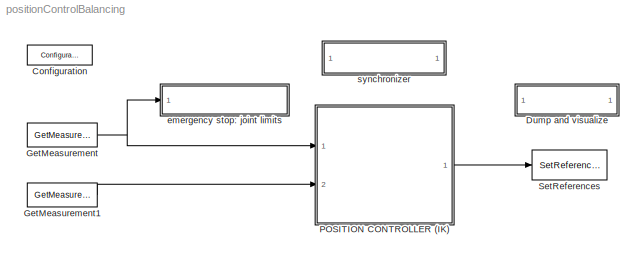
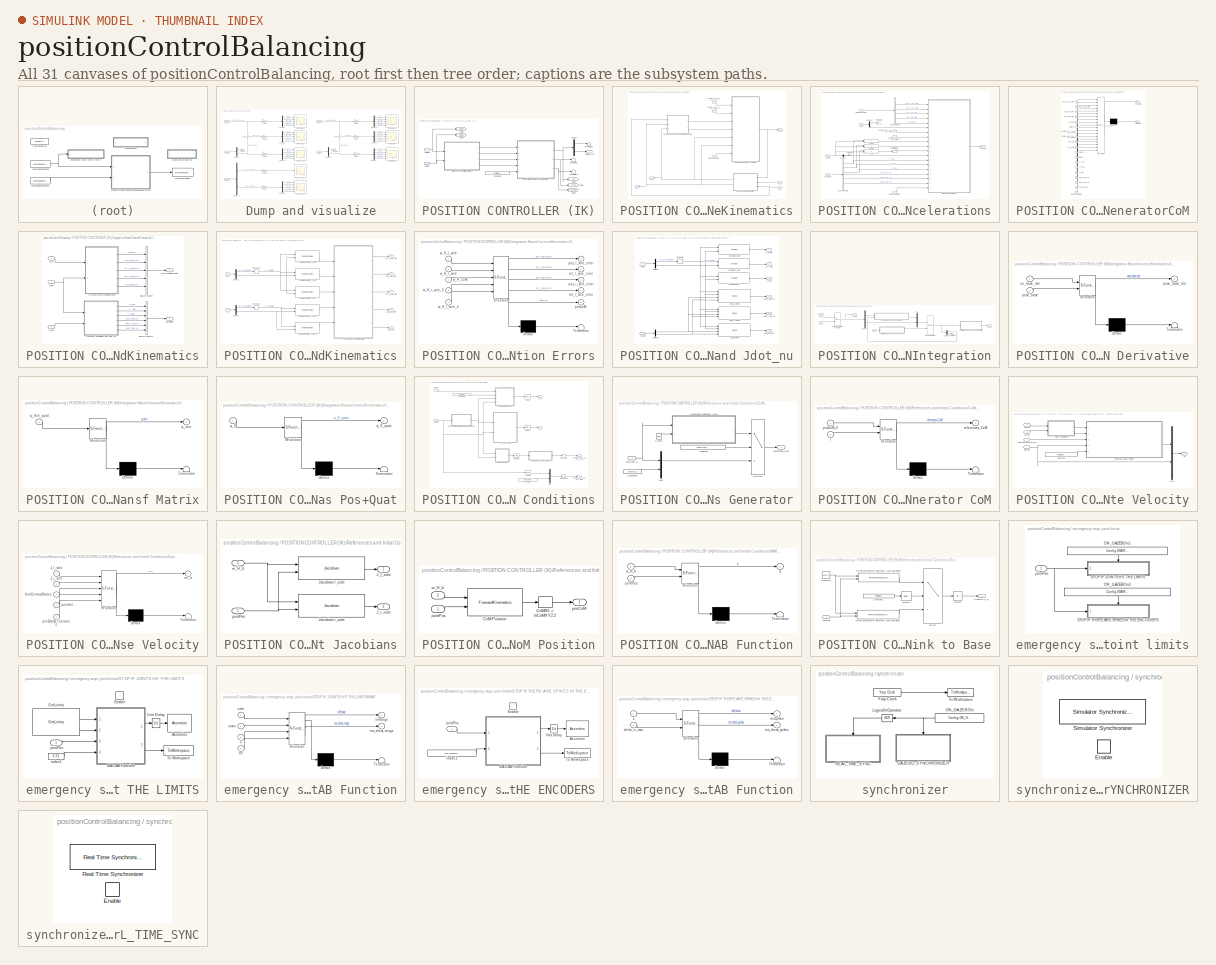
[diagram: thumbnail index - all 31 canvases of the model, root first then tree order]
MODEL positionControlBalancing
KIND model
CONFIG InitFcn = %% initialize the simulation\ncd(fileparts(which(bdroot)));\ninitPositionControlBalancing;\n\n%% Try to edit the GUI (the user may have already closed it)\ntry\n\n    %% Update Start Button\n    set(sl_synch_handles.startButton,'Backgroundcolor',[0.0,1.0,0.0]);\n    set(sl_synch_handles.startButton,'Enable','on');\n\nend
CONFIG PostLoadFcn = %% Try to open the static GUI\ntry\n\n    staticGUI = simulinkStaticGUI;\n\nend
CONFIG StartFcn = %% Try to edit the GUI (the user may have already closed it)\ntry\n\n    %% Update Start Button\n    set(sl_synch_handles.startButton,'Backgroundcolor',[0.8,0.8,0.8]);\n    set(sl_synch_handles.startButton,'Enable','off');\n\n    %% Update Compile Button\n    set(sl_synch_handles.compileButton,'Backgroundcolor',[0.8,0.8,0.8]);\n    set(sl_synch_handles.compileButton,'Enable','off');\n\n    %% Upda...<+146ch>
CONFIG StopFcn = %% stop the simulation\ncd(fileparts(which(bdroot)));\nstopPositionControlBalancing;\n\n%% Try to edit the GUI (the user may have already closed it)\ntry\n\n    %% Update Start Button\n    if get(sl_synch_handles.checkbox_recompile, 'Value')  \n        set(sl_synch_handles.startButton,'Backgroundcolor',[0.0,1.0,0.0]);\n        set(sl_synch_handles.startButton,'Enable','on');\n    end\n\n    %% Upd...<+310ch>
BLOCK [Reference] Configuration  REF=WBToolboxLibrary/Utilities/Configuration
  ConfigObject = 'WBTConfigRobot'
  ConfigSource = Workspace
  ControlBoardsNames = {'left_arm','right_arm','torso'}
  ControlledJoints = {'l_elbow','l_shoulder_pitch','torso_roll'}
  GravityVector = [0,0,-9.81]
  LocalName = 'WBT'
  Ports = []
  RTWMemSecDataConstants = Inherit from model
  RTWMemSecDataInternal = Inherit from model
  RTWMemSecDataParameters = Inherit from model
  RTWMemSecFuncExecute = Inherit from model
  RTWMemSecFuncInitTerm = Inherit from model
  RobotName = 'icubSim'
  SID = 4537
  SourceBlock = WBToolboxLibrary/Utilities/Configuration
  SourceProductName = WholeBodyToolbox
  UrdfFile = 'model.urdf'
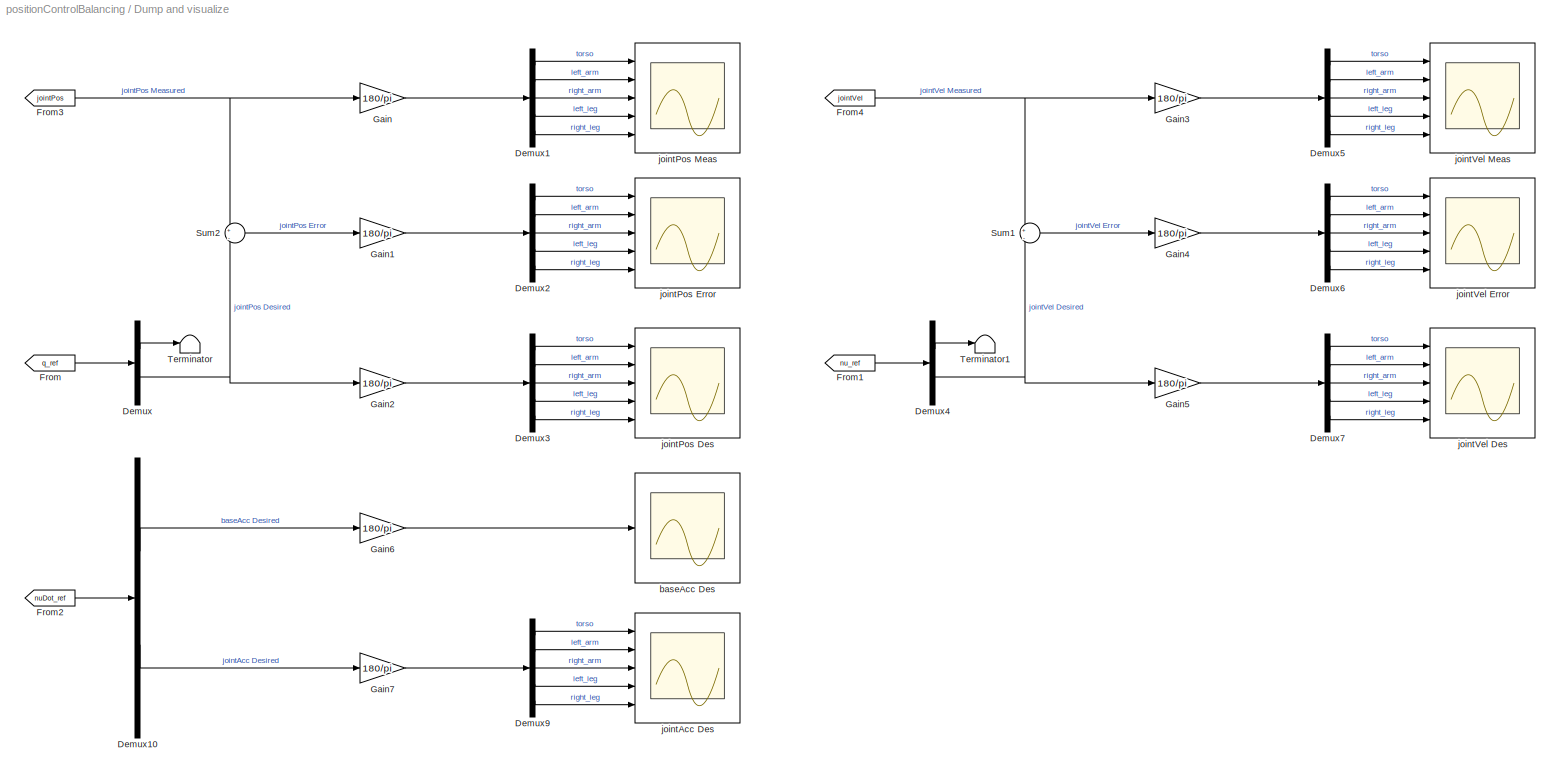
BLOCK [SubSystem] Dump and visualize
  Ports = []
  RequestExecContextInheritance = off
  SID = 2275
BLOCK [Demux] Dump and visualize/Demux
  Outputs = [16;ROBOT_DOF]
  Ports = [1, 2]
  SID = 5128
BLOCK [Demux] Dump and visualize/Demux1
  Outputs = Config.numOfJointsForEachControlboard
  Ports = [1, 5]
  SID = 5118
BLOCK [Demux] Dump and visualize/Demux10
  Outputs = [6;ROBOT_DOF]
  Ports = [1, 2]
  SID = 5148
BLOCK [Demux] Dump and visualize/Demux2
  Outputs = Config.numOfJointsForEachControlboard
  Ports = [1, 5]
  SID = 5119
BLOCK [Demux] Dump and visualize/Demux3
  Outputs = Config.numOfJointsForEachControlboard
  Ports = [1, 5]
  SID = 5120
BLOCK [Demux] Dump and visualize/Demux4
  Outputs = [6;ROBOT_DOF]
  Ports = [1, 2]
  SID = 5130
BLOCK [Demux] Dump and visualize/Demux5
  Outputs = Config.numOfJointsForEachControlboard
  Ports = [1, 5]
  SID = 5131
BLOCK [Demux] Dump and visualize/Demux6
  Outputs = Config.numOfJointsForEachControlboard
  Ports = [1, 5]
  SID = 5132
BLOCK [Demux] Dump and visualize/Demux7
  Outputs = Config.numOfJointsForEachControlboard
  Ports = [1, 5]
  SID = 5133
BLOCK [Demux] Dump and visualize/Demux9
  Outputs = Config.numOfJointsForEachControlboard
  Ports = [1, 5]
  SID = 5145
BLOCK [From] Dump and visualize/From
  GotoTag = q_ref
  SID = 5113
  TagVisibility = global
BLOCK [From] Dump and visualize/From1
  GotoTag = nu_ref
  SID = 5114
  TagVisibility = global
BLOCK [From] Dump and visualize/From2
  GotoTag = nuDot_ref
  SID = 5115
  TagVisibility = global
BLOCK [From] Dump and visualize/From3
  GotoTag = jointPos
  SID = 5116
  TagVisibility = global
BLOCK [From] Dump and visualize/From4
  GotoTag = jointVel
  SID = 5117
  TagVisibility = global
BLOCK [Gain] Dump and visualize/Gain
  Gain = 180/pi
  SID = 5121
BLOCK [Gain] Dump and visualize/Gain1
  Gain = 180/pi
  SID = 5122
BLOCK [Gain] Dump and visualize/Gain2
  Gain = 180/pi
  SID = 5123
BLOCK [Gain] Dump and visualize/Gain3
  Gain = 180/pi
  SID = 5134
BLOCK [Gain] Dump and visualize/Gain4
  Gain = 180/pi
  SID = 5135
BLOCK [Gain] Dump and visualize/Gain5
  Gain = 180/pi
  SID = 5136
BLOCK [Gain] Dump and visualize/Gain6
  Gain = 180/pi
  SID = 5143
BLOCK [Gain] Dump and visualize/Gain7
  Gain = 180/pi
  SID = 5146
BLOCK [Sum] Dump and visualize/Sum1
  Inputs = +|-
  Ports = [2, 1]
  SID = 5137
BLOCK [Sum] Dump and visualize/Sum2
  Inputs = +|-
  Ports = [2, 1]
  SID = 5124
BLOCK [Terminator] Dump and visualize/Terminator
  SID = 5129
BLOCK [Terminator] Dump and visualize/Terminator1
  SID = 5138
BLOCK [Scope] Dump and visualize/baseAcc Des
  Floating = off
  NumInputPorts = 1
  Ports = [1]
  SID = 5144
  ScopeSpecificationString = Simulink.scopes.TimeScopeBlockCfg('CurrentConfiguration', extmgr.ConfigurationSet(extmgr.Configuration('Core','General UI',true,'FigureColor',[0.156862745098039 0.156862745098039 0.156862745098039]),extmgr.Configuration('Core','Source UI',true),extmgr.Configuration('Sources','WiredSimulink',true,'DataLogging',true,'DataLoggingVariableName','baseAcc_des_DATA','DataLoggingSaveFormat','StructureWithT...<+2255ch>
BLOCK [Scope] Dump and visualize/jointAcc Des
  Floating = off
  NumInputPorts = 5
  Ports = [5]
  SID = 5147
  ScopeSpecificationString = Simulink.scopes.TimeScopeBlockCfg('CurrentConfiguration', extmgr.ConfigurationSet(extmgr.Configuration('Core','General UI',true,'FigureColor',[0.156862745098039 0.156862745098039 0.156862745098039]),extmgr.Configuration('Core','Source UI',true),extmgr.Configuration('Sources','WiredSimulink',true,'DataLogging',true,'DataLoggingVariableName','jointAcc_des_DATA','DataLoggingSaveFormat','StructureWith...<+7580ch>
BLOCK [Scope] Dump and visualize/jointPos Des
  Floating = off
  NumInputPorts = 5
  Ports = [5]
  SID = 5125
  ScopeSpecificationString = Simulink.scopes.TimeScopeBlockCfg('CurrentConfiguration', extmgr.ConfigurationSet(extmgr.Configuration('Core','General UI',true,'FigureColor',[0.156862745098039 0.156862745098039 0.156862745098039]),extmgr.Configuration('Core','Source UI',true),extmgr.Configuration('Sources','WiredSimulink',true,'DataLogging',true,'DataLoggingVariableName','jointPos_Desired_DATA','DataLoggingSaveFormat','Structure...<+7578ch>
BLOCK [Scope] Dump and visualize/jointPos Error
  Floating = off
  NumInputPorts = 5
  Ports = [5]
  SID = 5126
  ScopeSpecificationString = Simulink.scopes.TimeScopeBlockCfg('CurrentConfiguration', extmgr.ConfigurationSet(extmgr.Configuration('Core','General UI',true,'FigureColor',[0.156862745098039 0.156862745098039 0.156862745098039]),extmgr.Configuration('Core','Source UI',true),extmgr.Configuration('Sources','WiredSimulink',true,'DataLogging',true,'DataLoggingVariableName','jointPos_Error_DATA','DataLoggingSaveFormat','StructureWi...<+7570ch>
BLOCK [Scope] Dump and visualize/jointPos Meas
  Floating = off
  NumInputPorts = 5
  Ports = [5]
  SID = 5127
  ScopeSpecificationString = Simulink.scopes.TimeScopeBlockCfg('CurrentConfiguration', extmgr.ConfigurationSet(extmgr.Configuration('Core','General UI',true,'FigureColor',[0.156862745098039 0.156862745098039 0.156862745098039]),extmgr.Configuration('Core','Source UI',true),extmgr.Configuration('Sources','WiredSimulink',true,'DataLogging',true,'DataLoggingVariableName','jointPos_DATA','DataLoggingSaveFormat','StructureWithTime...<+7568ch>
BLOCK [Scope] Dump and visualize/jointVel Des
  Floating = off
  NumInputPorts = 5
  Ports = [5]
  SID = 5139
  ScopeSpecificationString = Simulink.scopes.TimeScopeBlockCfg('CurrentConfiguration', extmgr.ConfigurationSet(extmgr.Configuration('Core','General UI',true,'FigureColor',[0.156862745098039 0.156862745098039 0.156862745098039]),extmgr.Configuration('Core','Source UI',true),extmgr.Configuration('Sources','WiredSimulink',true,'DataLogging',true,'DataLoggingVariableName','jointVel_Desired_DATA','DataLoggingSaveFormat','Structure...<+7572ch>
BLOCK [Scope] Dump and visualize/jointVel Error
  Floating = off
  NumInputPorts = 5
  Ports = [5]
  SID = 5140
  ScopeSpecificationString = Simulink.scopes.TimeScopeBlockCfg('CurrentConfiguration', extmgr.ConfigurationSet(extmgr.Configuration('Core','General UI',true,'FigureColor',[0.156862745098039 0.156862745098039 0.156862745098039]),extmgr.Configuration('Core','Source UI',true),extmgr.Configuration('Sources','WiredSimulink',true,'DataLogging',true,'DataLoggingVariableName','jointVel_Error_DATA','DataLoggingSaveFormat','StructureWi...<+7581ch>
BLOCK [Scope] Dump and visualize/jointVel Meas
  Floating = off
  NumInputPorts = 5
  Ports = [5]
  SID = 5141
  ScopeSpecificationString = Simulink.scopes.TimeScopeBlockCfg('CurrentConfiguration', extmgr.ConfigurationSet(extmgr.Configuration('Core','General UI',true,'FigureColor',[0.156862745098039 0.156862745098039 0.156862745098039]),extmgr.Configuration('Core','Source UI',true),extmgr.Configuration('Sources','WiredSimulink',true,'DataLogging',true,'DataLoggingVariableName','jointVel_DATA','DataLoggingSaveFormat','StructureWithTime...<+7575ch>
BLOCK [Reference] GetMeasurement  REF=WBToolboxLibrary/States/GetMeasurement
  Ports = [0, 1]
  RTWMemSecDataConstants = Inherit from model
  RTWMemSecDataInternal = Inherit from model
  RTWMemSecDataParameters = Inherit from model
  RTWMemSecFuncExecute = Inherit from model
  RTWMemSecFuncInitTerm = Inherit from model
  SID = 4538
  SourceBlock = WBToolboxLibrary/States/GetMeasurement
  SourceProductName = WholeBodyToolbox
  SourceType = GetMeasurement
  measuredType = Joints Position
BLOCK [Reference] GetMeasurement1  REF=WBToolboxLibrary/States/GetMeasurement
  Ports = [0, 1]
  RTWMemSecDataConstants = Inherit from model
  RTWMemSecDataInternal = Inherit from model
  RTWMemSecDataParameters = Inherit from model
  RTWMemSecFuncExecute = Inherit from model
  RTWMemSecFuncInitTerm = Inherit from model
  SID = 4887
  SourceBlock = WBToolboxLibrary/States/GetMeasurement
  SourceProductName = WholeBodyToolbox
  SourceType = GetMeasurement
  measuredType = Joints Velocity
BLOCK [SubSystem] POSITION CONTROLLER (IK)
  Ports = [2, 1]
  RequestExecContextInheritance = off
  SID = 5076
BLOCK [Constant] POSITION CONTROLLER (IK)/Constant1
  SID = 5089
  Value = Config.feetContactStatus
BLOCK [Demux] POSITION CONTROLLER (IK)/Demux
  Outputs = [16;ROBOT_DOF]
  Ports = [1, 2]
  SID = 5102
BLOCK [Goto] POSITION CONTROLLER (IK)/Goto
  GotoTag = jointPos
  SID = 5108
  TagVisibility = global
BLOCK [Goto] POSITION CONTROLLER (IK)/Goto1
  GotoTag = jointVel
  SID = 5109
  TagVisibility = global
BLOCK [Goto] POSITION CONTROLLER (IK)/Goto2
  GotoTag = q_ref
  SID = 5110
  TagVisibility = global
BLOCK [Goto] POSITION CONTROLLER (IK)/Goto3
  GotoTag = nu_ref
  SID = 5111
  TagVisibility = global
BLOCK [Goto] POSITION CONTROLLER (IK)/Goto4
  GotoTag = nuDot_ref
  SID = 5112
  TagVisibility = global
BLOCK [SubSystem] POSITION CONTROLLER (IK)/Integration Based InverseKinematics
  Ports = [5, 3]
  RequestExecContextInheritance = off
  SID = 4907
BLOCK [SubSystem] POSITION CONTROLLER (IK)/Integration Based InverseKinematics/Compute Desired State Accelerations
  Ports = [7, 1]
  RequestExecContextInheritance = off
  SID = 4914
BLOCK [BusSelector] POSITION CONTROLLER (IK)/Integration Based InverseKinematics/Compute Desired State Accelerations/Bus\nSelector
  OutputSignals = pos_l_sole_error,pos_r_sole_error,rot_r_sole_error,rot_l_sole_error,posCoM
  Ports = [1, 5]
  SID = 5104
BLOCK [BusSelector] POSITION CONTROLLER (IK)/Integration Based InverseKinematics/Compute Desired State Accelerations/Bus\nSelector1
  OutputSignals = J_l_sole,J_r_sole,J_CoM,JDot_l_sole_nu,JDot_r_sole_nu,JDot_CoM_nu
  Ports = [1, 6]
  SID = 5105
BLOCK [Selector] POSITION CONTROLLER (IK)/Integration Based InverseKinematics/Compute Desired State Accelerations/CoM6D -> \nCoMXYZ1
  IndexOptions = Index vector (dialog)
  Indices = [1 2 3]
  InputPortWidth = 6
  OutputSizes = 1
  Ports = [1, 1]
  SID = 4927
BLOCK [Demux] POSITION CONTROLLER (IK)/Integration Based InverseKinematics/Compute Desired State Accelerations/Demux1
  Outputs = [6,ROBOT_DOF]
  Ports = [1, 2]
  SID = 4928
BLOCK [Demux] POSITION CONTROLLER (IK)/Integration Based InverseKinematics/Compute Desired State Accelerations/Demux2
  Outputs = [16,ROBOT_DOF]
  Ports = [1, 2]
  SID = 4929
BLOCK [Inport] POSITION CONTROLLER (IK)/Integration Based InverseKinematics/Compute Desired State Accelerations/Jacobians
  Port = 3
  SID = 5095
BLOCK [Product] POSITION CONTROLLER (IK)/Integration Based InverseKinematics/Compute Desired State Accelerations/JcNu
  Multiplication = Matrix(*)
  Ports = [2, 1]
  SID = 4930
BLOCK [Product] POSITION CONTROLLER (IK)/Integration Based InverseKinematics/Compute Desired State Accelerations/JcNu1
  Multiplication = Matrix(*)
  Ports = [2, 1]
  SID = 4931
BLOCK [Product] POSITION CONTROLLER (IK)/Integration Based InverseKinematics/Compute Desired State Accelerations/JcNu2
  Multiplication = Matrix(*)
  Ports = [2, 1]
  SID = 4932
BLOCK [Terminator] POSITION CONTROLLER (IK)/Integration Based InverseKinematics/Compute Desired State Accelerations/Terminator
  SID = 4933
BLOCK [Terminator] POSITION CONTROLLER (IK)/Integration Based InverseKinematics/Compute Desired State Accelerations/Terminator1
  SID = 4934
BLOCK [Inport] POSITION CONTROLLER (IK)/Integration Based InverseKinematics/Compute Desired State Accelerations/desired_pos_vel_acc_CoM
  SID = 4915
BLOCK [Inport] POSITION CONTROLLER (IK)/Integration Based InverseKinematics/Compute Desired State Accelerations/desired_pos_vel_acc_joints
  Port = 2
  SID = 4916
BLOCK [Inport] POSITION CONTROLLER (IK)/Integration Based InverseKinematics/Compute Desired State Accelerations/feetContactStatus
  Port = 7
  SID = 5099
BLOCK [Inport] POSITION CONTROLLER (IK)/Integration Based InverseKinematics/Compute Desired State Accelerations/forwardKinematics
  Port = 4
  SID = 5096
BLOCK [Outport] POSITION CONTROLLER (IK)/Integration Based InverseKinematics/Compute Desired State Accelerations/nuDot_ikin
  SID = 5098
  VectorParamsAs1DForOutWhenUnconnected = off
BLOCK [Inport] POSITION CONTROLLER (IK)/Integration Based InverseKinematics/Compute Desired State Accelerations/nu_ikin
  Port = 5
  SID = 4925
BLOCK [Inport] POSITION CONTROLLER (IK)/Integration Based InverseKinematics/Compute Desired State Accelerations/q_ikin
  Port = 6
  SID = 4926
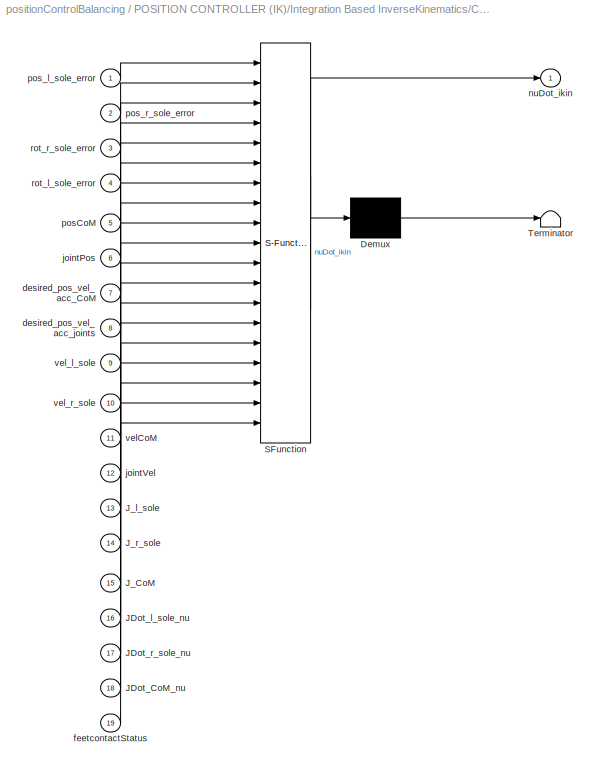
BLOCK [SubSystem] POSITION CONTROLLER (IK)/Integration Based InverseKinematics/Compute Desired State Accelerations/trajectoryGeneratorCoM
  ErrorFcn = Stateflow.Translate.translate
  PermitHierarchicalResolution = ExplicitOnly
  Ports = [19, 1]
  RequestExecContextInheritance = off
  SFBlockType = MATLAB Function
  SID = 4935
  TreatAsAtomicUnit = on
BLOCK [Demux] POSITION CONTROLLER (IK)/Integration Based InverseKinematics/Compute Desired State Accelerations/trajectoryGeneratorCoM/ Demux 
  Outputs = 1
  Ports = [1, 1]
  SID = 4935::1586
BLOCK [S-Function] POSITION CONTROLLER (IK)/Integration Based InverseKinematics/Compute Desired State Accelerations/trajectoryGeneratorCoM/ SFunction 
  EnableBusSupport = off
  FunctionName = sf_sfun
  Parameters = Config
  PortCounts = [19 2]
  Ports = [19, 2]
  SFcnIsStateOwnerBlock = off
  SFunctionDeploymentMode = off
  SID = 4935::1585
  Tag = Stateflow S-Function 29
BLOCK [Terminator] POSITION CONTROLLER (IK)/Integration Based InverseKinematics/Compute Desired State Accelerations/trajectoryGeneratorCoM/ Terminator 
  SID = 4935::1587
BLOCK [Inport] POSITION CONTROLLER (IK)/Integration Based InverseKinematics/Compute Desired State Accelerations/trajectoryGeneratorCoM/JDot_CoM_nu
  Port = 18
  SID = 4935::1542
BLOCK [Inport] POSITION CONTROLLER (IK)/Integration Based InverseKinematics/Compute Desired State Accelerations/trajectoryGeneratorCoM/JDot_l_sole_nu
  Port = 16
  SID = 4935::1540
BLOCK [Inport] POSITION CONTROLLER (IK)/Integration Based InverseKinematics/Compute Desired State Accelerations/trajectoryGeneratorCoM/JDot_r_sole_nu
  Port = 17
  SID = 4935::1541
BLOCK [Inport] POSITION CONTROLLER (IK)/Integration Based InverseKinematics/Compute Desired State Accelerations/trajectoryGeneratorCoM/J_CoM
  Port = 15
  SID = 4935::1545
BLOCK [Inport] POSITION CONTROLLER (IK)/Integration Based InverseKinematics/Compute Desired State Accelerations/trajectoryGeneratorCoM/J_l_sole
  Port = 13
  SID = 4935::1538
BLOCK [Inport] POSITION CONTROLLER (IK)/Integration Based InverseKinematics/Compute Desired State Accelerations/trajectoryGeneratorCoM/J_r_sole
  Port = 14
  SID = 4935::1539
BLOCK [Inport] POSITION CONTROLLER (IK)/Integration Based InverseKinematics/Compute Desired State Accelerations/trajectoryGeneratorCoM/desired_pos_vel_acc_CoM
  Port = 7
  SID = 4935::48
BLOCK [Inport] POSITION CONTROLLER (IK)/Integration Based InverseKinematics/Compute Desired State Accelerations/trajectoryGeneratorCoM/desired_pos_vel_acc_joints
  Port = 8
  SID = 4935::781
BLOCK [Inport] POSITION CONTROLLER (IK)/Integration Based InverseKinematics/Compute Desired State Accelerations/trajectoryGeneratorCoM/feetcontactStatus
  Port = 19
  SID = 4935::1543
BLOCK [Inport] POSITION CONTROLLER (IK)/Integration Based InverseKinematics/Compute Desired State Accelerations/trajectoryGeneratorCoM/jointPos
  Port = 6
  SID = 4935::777
BLOCK [Inport] POSITION CONTROLLER (IK)/Integration Based InverseKinematics/Compute Desired State Accelerations/trajectoryGeneratorCoM/jointVel
  Port = 12
  SID = 4935::778
BLOCK [Outport] POSITION CONTROLLER (IK)/Integration Based InverseKinematics/Compute Desired State Accelerations/trajectoryGeneratorCoM/nuDot_ikin
  SID = 4935::45
  VectorParamsAs1DForOutWhenUnconnected = off
BLOCK [Inport] POSITION CONTROLLER (IK)/Integration Based InverseKinematics/Compute Desired State Accelerations/trajectoryGeneratorCoM/posCoM
  Port = 5
  SID = 4935::775
BLOCK [Inport] POSITION CONTROLLER (IK)/Integration Based InverseKinematics/Compute Desired State Accelerations/trajectoryGeneratorCoM/pos_l_sole_error
  SID = 4935::780
BLOCK [Inport] POSITION CONTROLLER (IK)/Integration Based InverseKinematics/Compute Desired State Accelerations/trajectoryGeneratorCoM/pos_r_sole_error
  Port = 2
  SID = 4935::782
BLOCK [Inport] POSITION CONTROLLER (IK)/Integration Based InverseKinematics/Compute Desired State Accelerations/trajectoryGeneratorCoM/rot_l_sole_error
  Port = 4
  SID = 4935::1526
BLOCK [Inport] POSITION CONTROLLER (IK)/Integration Based InverseKinematics/Compute Desired State Accelerations/trajectoryGeneratorCoM/rot_r_sole_error
  Port = 3
  SID = 4935::1522
BLOCK [Inport] POSITION CONTROLLER (IK)/Integration Based InverseKinematics/Compute Desired State Accelerations/trajectoryGeneratorCoM/velCoM
  Port = 11
  SID = 4935::776
BLOCK [Inport] POSITION CONTROLLER (IK)/Integration Based InverseKinematics/Compute Desired State Accelerations/trajectoryGeneratorCoM/vel_l_sole
  Port = 9
  SID = 4935::1528
BLOCK [Inport] POSITION CONTROLLER (IK)/Integration Based InverseKinematics/Compute Desired State Accelerations/trajectoryGeneratorCoM/vel_r_sole
  Port = 10
  SID = 4935::783
BLOCK [SubSystem] POSITION CONTROLLER (IK)/Integration Based InverseKinematics/Compute Jacobians and ForwardKinematics
  Ports = [3, 2]
  RequestExecContextInheritance = off
  SID = 4939
BLOCK [BusCreator] POSITION CONTROLLER (IK)/Integration Based InverseKinematics/Compute Jacobians and ForwardKinematics/Bus\nCreator
  DisplayOption = bar
  InheritFromInputs = on
  Inputs = 5
  Ports = [5, 1]
  SID = 5093
BLOCK [BusCreator] POSITION CONTROLLER (IK)/Integration Based InverseKinematics/Compute Jacobians and ForwardKinematics/Bus\nCreator1
  DisplayOption = bar
  InheritFromInputs = on
  Inputs = 6
  Ports = [6, 1]
  SID = 5094
BLOCK [SubSystem] POSITION CONTROLLER (IK)/Integration Based InverseKinematics/Compute Jacobians and ForwardKinematics/Compute ForwardKinematics
  Ports = [2, 5]
  RequestExecContextInheritance = off
  SID = 4943
BLOCK [SubSystem] POSITION CONTROLLER (IK)/Integration Based InverseKinematics/Compute Jacobians and ForwardKinematics/Compute ForwardKinematics/Comput Position and Orientation Errors
  ErrorFcn = Stateflow.Translate.translate
  PermitHierarchicalResolution = ExplicitOnly
  Ports = [5, 5]
  RequestExecContextInheritance = off
  SFBlockType = MATLAB Function
  SID = 4946
  TreatAsAtomicUnit = on
BLOCK [Demux] POSITION CONTROLLER (IK)/Integration Based InverseKinematics/Compute Jacobians and ForwardKinematics/Compute ForwardKinematics/Comput Position and Orientation Errors/ Demux 
  Outputs = 1
  Ports = [1, 1]
  SID = 4946::80
BLOCK [S-Function] POSITION CONTROLLER (IK)/Integration Based InverseKinematics/Compute Jacobians and ForwardKinematics/Compute ForwardKinematics/Comput Position and Orientation Errors/ SFunction 
  EnableBusSupport = off
  FunctionName = sf_sfun
  PortCounts = [5 6]
  Ports = [5, 6]
  SFcnIsStateOwnerBlock = off
  SFunctionDeploymentMode = off
  SID = 4946::79
  Tag = Stateflow S-Function 1
BLOCK [Terminator] POSITION CONTROLLER (IK)/Integration Based InverseKinematics/Compute Jacobians and ForwardKinematics/Compute ForwardKinematics/Comput Position and Orientation Errors/ Terminator 
  SID = 4946::81
BLOCK [Outport] POSITION CONTROLLER (IK)/Integration Based InverseKinematics/Compute Jacobians and ForwardKinematics/Compute ForwardKinematics/Comput Position and Orientation Errors/posCoM
  Port = 5
  SID = 4946::30
  VectorParamsAs1DForOutWhenUnconnected = off
BLOCK [Outport] POSITION CONTROLLER (IK)/Integration Based InverseKinematics/Compute Jacobians and ForwardKinematics/Compute ForwardKinematics/Comput Position and Orientation Errors/pos_l_sole_error
  SID = 4946::5
  VectorParamsAs1DForOutWhenUnconnected = off
BLOCK [Outport] POSITION CONTROLLER (IK)/Integration Based InverseKinematics/Compute Jacobians and ForwardKinematics/Compute ForwardKinematics/Comput Position and Orientation Errors/pos_r_sole_error
  Port = 3
  SID = 4946::28
  VectorParamsAs1DForOutWhenUnconnected = off
BLOCK [Outport] POSITION CONTROLLER (IK)/Integration Based InverseKinematics/Compute Jacobians and ForwardKinematics/Compute ForwardKinematics/Comput Position and Orientation Errors/rot_l_sole_error
  Port = 2
  SID = 4946::27
  VectorParamsAs1DForOutWhenUnconnected = off
BLOCK [Outport] POSITION CONTROLLER (IK)/Integration Based InverseKinematics/Compute Jacobians and ForwardKinematics/Compute ForwardKinematics/Comput Position and Orientation Errors/rot_r_sole_error
  Port = 4
  SID = 4946::29
  VectorParamsAs1DForOutWhenUnconnected = off
BLOCK [Inport] POSITION CONTROLLER (IK)/Integration Based InverseKinematics/Compute Jacobians and ForwardKinematics/Compute ForwardKinematics/Comput Position and Orientation Errors/w_H_CoM
  Port = 3
  SID = 4946::1
BLOCK [Inport] POSITION CONTROLLER (IK)/Integration Based InverseKinematics/Compute Jacobians and ForwardKinematics/Compute ForwardKinematics/Comput Position and Orientation Errors/w_H_l_sole
  SID = 4946::23
BLOCK [Inport] POSITION CONTROLLER (IK)/Integration Based InverseKinematics/Compute Jacobians and ForwardKinematics/Compute ForwardKinematics/Comput Position and Orientation Errors/w_H_l_sole_0
  Port = 5
  SID = 4946::24
BLOCK [Inport] POSITION CONTROLLER (IK)/Integration Based InverseKinematics/Compute Jacobians and ForwardKinematics/Compute ForwardKinematics/Comput Position and Orientation Errors/w_H_r_sole
  Port = 2
  SID = 4946::25
BLOCK [Inport] POSITION CONTROLLER (IK)/Integration Based InverseKinematics/Compute Jacobians and ForwardKinematics/Compute ForwardKinematics/Comput Position and Orientation Errors/w_H_r_sole_0
  Port = 4
  SID = 4946::26
BLOCK [Demux] POSITION CONTROLLER (IK)/Integration Based InverseKinematics/Compute Jacobians and ForwardKinematics/Compute ForwardKinematics/Demux1
  Outputs = [16;ROBOT_DOF]
  Ports = [1, 2]
  SID = 4947
BLOCK [Demux] POSITION CONTROLLER (IK)/Integration Based InverseKinematics/Compute Jacobians and ForwardKinematics/Compute ForwardKinematics/Demux2
  Outputs = [16;ROBOT_DOF]
  Ports = [1, 2]
  SID = 4948
BLOCK [Reference] POSITION CONTROLLER (IK)/Integration Based InverseKinematics/Compute Jacobians and ForwardKinematics/Compute ForwardKinematics/ForwardKinematics_CoM  REF=WBToolboxLibrary/Model/Kinematics/ForwardKinematics
  Ports = [2, 1]
  RTWMemSecDataConstants = Inherit from model
  RTWMemSecDataInternal = Inherit from model
  RTWMemSecDataParameters = Inherit from model
  RTWMemSecFuncExecute = Inherit from model
  RTWMemSecFuncInitTerm = Inherit from model
  SID = 4949
  SourceBlock = WBToolboxLibrary/Model/Kinematics/ForwardKinematics
  SourceProductName = WholeBodyToolbox
  SourceType = ForwardKinematics
  frameName = Frames.COM
BLOCK [Reference] POSITION CONTROLLER (IK)/Integration Based InverseKinematics/Compute Jacobians and ForwardKinematics/Compute ForwardKinematics/ForwardKinematics_l_sole  REF=WBToolboxLibrary/Model/Kinematics/ForwardKinematics
  Ports = [2, 1]
  RTWMemSecDataConstants = Inherit from model
  RTWMemSecDataInternal = Inherit from model
  RTWMemSecDataParameters = Inherit from model
  RTWMemSecFuncExecute = Inherit from model
  RTWMemSecFuncInitTerm = Inherit from model
  SID = 4950
  SourceBlock = WBToolboxLibrary/Model/Kinematics/ForwardKinematics
  SourceProductName = WholeBodyToolbox
  SourceType = ForwardKinematics
  frameName = Frames.LEFT_FOOT
BLOCK [Reference] POSITION CONTROLLER (IK)/Integration Based InverseKinematics/Compute Jacobians and ForwardKinematics/Compute ForwardKinematics/ForwardKinematics_l_sole_0  REF=WBToolboxLibrary/Model/Kinematics/ForwardKinematics
  Ports = [2, 1]
  RTWMemSecDataConstants = Inherit from model
  RTWMemSecDataInternal = Inherit from model
  RTWMemSecDataParameters = Inherit from model
  RTWMemSecFuncExecute = Inherit from model
  RTWMemSecFuncInitTerm = Inherit from model
  SID = 4951
  SourceBlock = WBToolboxLibrary/Model/Kinematics/ForwardKinematics
  SourceProductName = WholeBodyToolbox
  SourceType = ForwardKinematics
  frameName = Frames.LEFT_FOOT
BLOCK [Reference] POSITION CONTROLLER (IK)/Integration Based InverseKinematics/Compute Jacobians and ForwardKinematics/Compute ForwardKinematics/ForwardKinematics_r_sole  REF=WBToolboxLibrary/Model/Kinematics/ForwardKinematics
  Ports = [2, 1]
  RTWMemSecDataConstants = Inherit from model
  RTWMemSecDataInternal = Inherit from model
  RTWMemSecDataParameters = Inherit from model
  RTWMemSecFuncExecute = Inherit from model
  RTWMemSecFuncInitTerm = Inherit from model
  SID = 4952
  SourceBlock = WBToolboxLibrary/Model/Kinematics/ForwardKinematics
  SourceProductName = WholeBodyToolbox
  SourceType = ForwardKinematics
  frameName = Frames.RIGHT_FOOT
BLOCK [Reference] POSITION CONTROLLER (IK)/Integration Based InverseKinematics/Compute Jacobians and ForwardKinematics/Compute ForwardKinematics/ForwardKinematics_r_sole_0  REF=WBToolboxLibrary/Model/Kinematics/ForwardKinematics
  Ports = [2, 1]
  RTWMemSecDataConstants = Inherit from model
  RTWMemSecDataInternal = Inherit from model
  RTWMemSecDataParameters = Inherit from model
  RTWMemSecFuncExecute = Inherit from model
  RTWMemSecFuncInitTerm = Inherit from model
  SID = 4953
  SourceBlock = WBToolboxLibrary/Model/Kinematics/ForwardKinematics
  SourceProductName = WholeBodyToolbox
  SourceType = ForwardKinematics
  frameName = Frames.RIGHT_FOOT
BLOCK [Reshape] POSITION CONTROLLER (IK)/Integration Based InverseKinematics/Compute Jacobians and ForwardKinematics/Compute ForwardKinematics/Reshape1
  OutputDimensionality = Customize
  OutputDimensions = [4,4]
  Ports = [1, 1]
  SID = 4954
BLOCK [Reshape] POSITION CONTROLLER (IK)/Integration Based InverseKinematics/Compute Jacobians and ForwardKinematics/Compute ForwardKinematics/Reshape2
  OutputDimensionality = Customize
  OutputDimensions = [4,4]
  Ports = [1, 1]
  SID = 4955
BLOCK [Outport] POSITION CONTROLLER (IK)/Integration Based InverseKinematics/Compute Jacobians and ForwardKinematics/Compute ForwardKinematics/posCoM
  SID = 4956
  VectorParamsAs1DForOutWhenUnconnected = off
BLOCK [Outport] POSITION CONTROLLER (IK)/Integration Based InverseKinematics/Compute Jacobians and ForwardKinematics/Compute ForwardKinematics/pos_l_sole_error
  Port = 2
  SID = 4957
  VectorParamsAs1DForOutWhenUnconnected = off
BLOCK [Outport] POSITION CONTROLLER (IK)/Integration Based InverseKinematics/Compute Jacobians and ForwardKinematics/Compute ForwardKinematics/pos_r_sole_error
  Port = 4
  SID = 4959
  VectorParamsAs1DForOutWhenUnconnected = off
BLOCK [Inport] POSITION CONTROLLER (IK)/Integration Based InverseKinematics/Compute Jacobians and ForwardKinematics/Compute ForwardKinematics/q_0
  SID = 4944
BLOCK [Inport] POSITION CONTROLLER (IK)/Integration Based InverseKinematics/Compute Jacobians and ForwardKinematics/Compute ForwardKinematics/q_ikin
  Port = 2
  SID = 4945
BLOCK [Outport] POSITION CONTROLLER (IK)/Integration Based InverseKinematics/Compute Jacobians and ForwardKinematics/Compute ForwardKinematics/rot_l_sole_error
  Port = 5
  SID = 4960
  VectorParamsAs1DForOutWhenUnconnected = off
BLOCK [Outport] POSITION CONTROLLER (IK)/Integration Based InverseKinematics/Compute Jacobians and ForwardKinematics/Compute ForwardKinematics/rot_r_sole_error
  Port = 3
  SID = 4958
  VectorParamsAs1DForOutWhenUnconnected = off
BLOCK [SubSystem] POSITION CONTROLLER (IK)/Integration Based InverseKinematics/Compute Jacobians and ForwardKinematics/Compute Jacobians and Jdot_nu
  Ports = [2, 6]
  RequestExecContextInheritance = off
  SID = 4961
BLOCK [Demux] POSITION CONTROLLER (IK)/Integration Based InverseKinematics/Compute Jacobians and ForwardKinematics/Compute Jacobians and Jdot_nu/Demux
  Outputs = [16;ROBOT_DOF]
  Ports = [1, 2]
  SID = 4963
BLOCK [Demux] POSITION CONTROLLER (IK)/Integration Based InverseKinematics/Compute Jacobians and ForwardKinematics/Compute Jacobians and Jdot_nu/Demux2
  Outputs = [6;ROBOT_DOF]
  Ports = [1, 2]
  SID = 4975
BLOCK [Reference] POSITION CONTROLLER (IK)/Integration Based InverseKinematics/Compute Jacobians and ForwardKinematics/Compute Jacobians and Jdot_nu/JDot_CoM nu  REF=WBToolboxLibrary/Model/Jacobians/DotJNu
  Ports = [4, 1]
  RTWMemSecDataConstants = Inherit from model
  RTWMemSecDataInternal = Inherit from model
  RTWMemSecDataParameters = Inherit from model
  RTWMemSecFuncExecute = Inherit from model
  RTWMemSecFuncInitTerm = Inherit from model
  SID = 4977
  SourceBlock = WBToolboxLibrary/Model/Jacobians/DotJNu
  SourceProductName = WholeBodyToolbox
  SourceType = DotJNu
  frameName = Frames.COM
BLOCK [Outport] POSITION CONTROLLER (IK)/Integration Based InverseKinematics/Compute Jacobians and ForwardKinematics/Compute Jacobians and Jdot_nu/JDot_CoM_nu
  Port = 6
  SID = 4982
  VectorParamsAs1DForOutWhenUnconnected = off
BLOCK [Reference] POSITION CONTROLLER (IK)/Integration Based InverseKinematics/Compute Jacobians and ForwardKinematics/Compute Jacobians and Jdot_nu/JDot_l_sole nu  REF=WBToolboxLibrary/Model/Jacobians/DotJNu
  Ports = [4, 1]
  RTWMemSecDataConstants = Inherit from model
  RTWMemSecDataInternal = Inherit from model
  RTWMemSecDataParameters = Inherit from model
  RTWMemSecFuncExecute = Inherit from model
  RTWMemSecFuncInitTerm = Inherit from model
  SID = 4978
  SourceBlock = WBToolboxLibrary/Model/Jacobians/DotJNu
  SourceProductName = WholeBodyToolbox
  SourceType = DotJNu
  frameName = Frames.LEFT_FOOT
BLOCK [Outport] POSITION CONTROLLER (IK)/Integration Based InverseKinematics/Compute Jacobians and ForwardKinematics/Compute Jacobians and Jdot_nu/JDot_l_sole_nu
  Port = 4
  SID = 4980
  VectorParamsAs1DForOutWhenUnconnected = off
BLOCK [Reference] POSITION CONTROLLER (IK)/Integration Based InverseKinematics/Compute Jacobians and ForwardKinematics/Compute Jacobians and Jdot_nu/JDot_r_sole nu  REF=WBToolboxLibrary/Model/Jacobians/DotJNu
  Ports = [4, 1]
  RTWMemSecDataConstants = Inherit from model
  RTWMemSecDataInternal = Inherit from model
  RTWMemSecDataParameters = Inherit from model
  RTWMemSecFuncExecute = Inherit from model
  RTWMemSecFuncInitTerm = Inherit from model
  SID = 4979
  SourceBlock = WBToolboxLibrary/Model/Jacobians/DotJNu
  SourceProductName = WholeBodyToolbox
  SourceType = DotJNu
  frameName = Frames.RIGHT_FOOT
BLOCK [Outport] POSITION CONTROLLER (IK)/Integration Based InverseKinematics/Compute Jacobians and ForwardKinematics/Compute Jacobians and Jdot_nu/JDot_r_sole_nu
  Port = 5
  SID = 4981
  VectorParamsAs1DForOutWhenUnconnected = off
BLOCK [Outport] POSITION CONTROLLER (IK)/Integration Based InverseKinematics/Compute Jacobians and ForwardKinematics/Compute Jacobians and Jdot_nu/J_CoM
  Port = 3
  SID = 4970
  VectorParamsAs1DForOutWhenUnconnected = off
BLOCK [Outport] POSITION CONTROLLER (IK)/Integration Based InverseKinematics/Compute Jacobians and ForwardKinematics/Compute Jacobians and Jdot_nu/J_l_sole
  SID = 4968
  VectorParamsAs1DForOutWhenUnconnected = off
BLOCK [Outport] POSITION CONTROLLER (IK)/Integration Based InverseKinematics/Compute Jacobians and ForwardKinematics/Compute Jacobians and Jdot_nu/J_r_sole
  Port = 2
  SID = 4969
  VectorParamsAs1DForOutWhenUnconnected = off
BLOCK [Reference] POSITION CONTROLLER (IK)/Integration Based InverseKinematics/Compute Jacobians and ForwardKinematics/Compute Jacobians and Jdot_nu/Jacobian CoM  REF=WBToolboxLibrary/Model/Jacobians/Jacobian
  Ports = [2, 1]
  RTWMemSecDataConstants = Inherit from model
  RTWMemSecDataInternal = Inherit from model
  RTWMemSecDataParameters = Inherit from model
  RTWMemSecFuncExecute = Inherit from model
  RTWMemSecFuncInitTerm = Inherit from model
  SID = 4964
  SourceBlock = WBToolboxLibrary/Model/Jacobians/Jacobian
  SourceProductName = WholeBodyToolbox
  SourceType = Jacobian
  frameName = Frames.COM
BLOCK [Reference] POSITION CONTROLLER (IK)/Integration Based InverseKinematics/Compute Jacobians and ForwardKinematics/Compute Jacobians and Jdot_nu/Jacobian l_sole  REF=WBToolboxLibrary/Model/Jacobians/Jacobian
  Ports = [2, 1]
  RTWMemSecDataConstants = Inherit from model
  RTWMemSecDataInternal = Inherit from model
  RTWMemSecDataParameters = Inherit from model
  RTWMemSecFuncExecute = Inherit from model
  RTWMemSecFuncInitTerm = Inherit from model
  SID = 4965
  SourceBlock = WBToolboxLibrary/Model/Jacobians/Jacobian
  SourceProductName = WholeBodyToolbox
  SourceType = Jacobian
  frameName = Frames.LEFT_FOOT
BLOCK [Reference] POSITION CONTROLLER (IK)/Integration Based InverseKinematics/Compute Jacobians and ForwardKinematics/Compute Jacobians and Jdot_nu/Jacobian r_sole  REF=WBToolboxLibrary/Model/Jacobians/Jacobian
  Ports = [2, 1]
  RTWMemSecDataConstants = Inherit from model
  RTWMemSecDataInternal = Inherit from model
  RTWMemSecDataParameters = Inherit from model
  RTWMemSecFuncExecute = Inherit from model
  RTWMemSecFuncInitTerm = Inherit from model
  SID = 4966
  SourceBlock = WBToolboxLibrary/Model/Jacobians/Jacobian
  SourceProductName = WholeBodyToolbox
  SourceType = Jacobian
  frameName = Frames.RIGHT_FOOT
BLOCK [Reshape] POSITION CONTROLLER (IK)/Integration Based InverseKinematics/Compute Jacobians and ForwardKinematics/Compute Jacobians and Jdot_nu/Reshape
  OutputDimensionality = Customize
  OutputDimensions = [4,4]
  Ports = [1, 1]
  SID = 4967
BLOCK [Inport] POSITION CONTROLLER (IK)/Integration Based InverseKinematics/Compute Jacobians and ForwardKinematics/Compute Jacobians and Jdot_nu/nu_ikin
  Port = 2
  SID = 4972
BLOCK [Inport] POSITION CONTROLLER (IK)/Integration Based InverseKinematics/Compute Jacobians and ForwardKinematics/Compute Jacobians and Jdot_nu/q_ikin
  SID = 4962
BLOCK [Outport] POSITION CONTROLLER (IK)/Integration Based InverseKinematics/Compute Jacobians and ForwardKinematics/Jacobians
  SID = 4985
  VectorParamsAs1DForOutWhenUnconnected = off
BLOCK [Outport] POSITION CONTROLLER (IK)/Integration Based InverseKinematics/Compute Jacobians and ForwardKinematics/forwardKinematics
  Port = 2
  SID = 4989
  VectorParamsAs1DForOutWhenUnconnected = off
BLOCK [Inport] POSITION CONTROLLER (IK)/Integration Based InverseKinematics/Compute Jacobians and ForwardKinematics/nu_ikin
  Port = 3
  SID = 4941
BLOCK [Inport] POSITION CONTROLLER (IK)/Integration Based InverseKinematics/Compute Jacobians and ForwardKinematics/q_0
  SID = 4942
BLOCK [Inport] POSITION CONTROLLER (IK)/Integration Based InverseKinematics/Compute Jacobians and ForwardKinematics/q_ikin
  Port = 2
  SID = 4940
BLOCK [SubSystem] POSITION CONTROLLER (IK)/Integration Based InverseKinematics/InverseKinematics Integration
  Ports = [3, 2]
  RequestExecContextInheritance = off
  SID = 4994
BLOCK [SubSystem] POSITION CONTROLLER (IK)/Integration Based InverseKinematics/InverseKinematics Integration/Compute the Base Pose Derivative
  ErrorFcn = Stateflow.Translate.translate
  PermitHierarchicalResolution = ExplicitOnly
  Ports = [2, 1]
  RequestExecContextInheritance = off
  SFBlockType = MATLAB Function
  SID = 4999
  TreatAsAtomicUnit = on
BLOCK [Demux] POSITION CONTROLLER (IK)/Integration Based InverseKinematics/InverseKinematics Integration/Compute the Base Pose Derivative/ Demux 
  Outputs = 1
  Ports = [1, 1]
  SID = 4999::77
BLOCK [S-Function] POSITION CONTROLLER (IK)/Integration Based InverseKinematics/InverseKinematics Integration/Compute the Base Pose Derivative/ SFunction 
  EnableBusSupport = off
  FunctionName = sf_sfun
  PortCounts = [2 2]
  Ports = [2, 2]
  SFcnIsStateOwnerBlock = off
  SFunctionDeploymentMode = off
  SID = 4999::76
  Tag = Stateflow S-Function 24
BLOCK [Terminator] POSITION CONTROLLER (IK)/Integration Based InverseKinematics/InverseKinematics Integration/Compute the Base Pose Derivative/ Terminator 
  SID = 4999::78
BLOCK [Inport] POSITION CONTROLLER (IK)/Integration Based InverseKinematics/InverseKinematics Integration/Compute the Base Pose Derivative/nu_base_ikin
  SID = 4999::23
BLOCK [Inport] POSITION CONTROLLER (IK)/Integration Based InverseKinematics/InverseKinematics Integration/Compute the Base Pose Derivative/pose_base
  Port = 2
  SID = 4999::33
BLOCK [Outport] POSITION CONTROLLER (IK)/Integration Based InverseKinematics/InverseKinematics Integration/Compute the Base Pose Derivative/pose_base_dot
  SID = 4999::5
  VectorParamsAs1DForOutWhenUnconnected = off
BLOCK [Demux] POSITION CONTROLLER (IK)/Integration Based InverseKinematics/InverseKinematics Integration/Demux
  Outputs = [7;ROBOT_DOF]
  Ports = [1, 2]
  SID = 5000
BLOCK [Demux] POSITION CONTROLLER (IK)/Integration Based InverseKinematics/InverseKinematics Integration/Demux1
  Outputs = [6;ROBOT_DOF]
  Ports = [1, 2]
  SID = 5001
BLOCK [Mux] POSITION CONTROLLER (IK)/Integration Based InverseKinematics/InverseKinematics Integration/Mux
  DisplayOption = bar
  Inputs = 2
  Ports = [2, 1]
  SID = 5002
BLOCK [SubSystem] POSITION CONTROLLER (IK)/Integration Based InverseKinematics/InverseKinematics Integration/Rewirte the Base Pose as Transf Matrix
  ErrorFcn = Stateflow.Translate.translate
  PermitHierarchicalResolution = ExplicitOnly
  Ports = [1, 1]
  RequestExecContextInheritance = off
  SFBlockType = MATLAB Function
  SID = 5003
  TreatAsAtomicUnit = on
BLOCK [Demux] POSITION CONTROLLER (IK)/Integration Based InverseKinematics/InverseKinematics Integration/Rewirte the Base Pose as Transf Matrix/ Demux 
  Outputs = 1
  Ports = [1, 1]
  SID = 5003::75
BLOCK [S-Function] POSITION CONTROLLER (IK)/Integration Based InverseKinematics/InverseKinematics Integration/Rewirte the Base Pose as Transf Matrix/ SFunction 
  EnableBusSupport = off
  FunctionName = sf_sfun
  PortCounts = [1 2]
  Ports = [1, 2]
  SFcnIsStateOwnerBlock = off
  SFunctionDeploymentMode = off
  SID = 5003::74
  Tag = Stateflow S-Function 31
BLOCK [Terminator] POSITION CONTROLLER (IK)/Integration Based InverseKinematics/InverseKinematics Integration/Rewirte the Base Pose as Transf Matrix/ Terminator 
  SID = 5003::76
BLOCK [Outport] POSITION CONTROLLER (IK)/Integration Based InverseKinematics/InverseKinematics Integration/Rewirte the Base Pose as Transf Matrix/q_ikin
  SID = 5003::5
  VectorParamsAs1DForOutWhenUnconnected = off
BLOCK [Inport] POSITION CONTROLLER (IK)/Integration Based InverseKinematics/InverseKinematics Integration/Rewirte the Base Pose as Transf Matrix/q_ikin_quat
  SID = 5003::1
BLOCK [SubSystem] POSITION CONTROLLER (IK)/Integration Based InverseKinematics/InverseKinematics Integration/Rewrite the Base Pose as Pos+Quat
  ErrorFcn = Stateflow.Translate.translate
  PermitHierarchicalResolution = ExplicitOnly
  Ports = [1, 1]
  RequestExecContextInheritance = off
  SFBlockType = MATLAB Function
  SID = 5004
  TreatAsAtomicUnit = on
BLOCK [Demux] POSITION CONTROLLER (IK)/Integration Based InverseKinematics/InverseKinematics Integration/Rewrite the Base Pose as Pos+Quat/ Demux 
  Outputs = 1
  Ports = [1, 1]
  SID = 5004::75
BLOCK [S-Function] POSITION CONTROLLER (IK)/Integration Based InverseKinematics/InverseKinematics Integration/Rewrite the Base Pose as Pos+Quat/ SFunction 
  EnableBusSupport = off
  FunctionName = sf_sfun
  PortCounts = [1 2]
  Ports = [1, 2]
  SFcnIsStateOwnerBlock = off
  SFunctionDeploymentMode = off
  SID = 5004::74
  Tag = Stateflow S-Function 30
BLOCK [Terminator] POSITION CONTROLLER (IK)/Integration Based InverseKinematics/InverseKinematics Integration/Rewrite the Base Pose as Pos+Quat/ Terminator 
  SID = 5004::76
BLOCK [Inport] POSITION CONTROLLER (IK)/Integration Based InverseKinematics/InverseKinematics Integration/Rewrite the Base Pose as Pos+Quat/q_0
  SID = 5004::1
BLOCK [Outport] POSITION CONTROLLER (IK)/Integration Based InverseKinematics/InverseKinematics Integration/Rewrite the Base Pose as Pos+Quat/q_0_quat
  SID = 5004::5
  VectorParamsAs1DForOutWhenUnconnected = off
BLOCK [DiscreteIntegrator] POSITION CONTROLLER (IK)/Integration Based InverseKinematics/InverseKinematics Integration/State Acceleration Integration
  ICPrevOutput = DiscIntNeverNeededParam
  ICPrevScaledInput = DiscIntNeverNeededParam
  InitialConditionSource = external
  Ports = [2, 1]
  SID = 4998
  SampleTime = Config.tStep
BLOCK [Terminator] POSITION CONTROLLER (IK)/Integration Based InverseKinematics/InverseKinematics Integration/Terminator
  SID = 5005
BLOCK [DiscreteIntegrator] POSITION CONTROLLER (IK)/Integration Based InverseKinematics/InverseKinematics Integration/Velocity Integration
  ICPrevOutput = DiscIntNeverNeededParam
  ICPrevScaledInput = DiscIntNeverNeededParam
  InitialConditionSource = external
  Ports = [2, 1]
  SID = 5006
  SampleTime = Config.tStep
BLOCK [Inport] POSITION CONTROLLER (IK)/Integration Based InverseKinematics/InverseKinematics Integration/nuDot_ikin
  SID = 4995
BLOCK [Inport] POSITION CONTROLLER (IK)/Integration Based InverseKinematics/InverseKinematics Integration/nu_0
  Port = 2
  SID = 4996
BLOCK [Outport] POSITION CONTROLLER (IK)/Integration Based InverseKinematics/InverseKinematics Integration/nu_ikin
  SID = 5007
  VectorParamsAs1DForOutWhenUnconnected = off
BLOCK [Inport] POSITION CONTROLLER (IK)/Integration Based InverseKinematics/InverseKinematics Integration/q_0
  Port = 3
  SID = 4997
BLOCK [Outport] POSITION CONTROLLER (IK)/Integration Based InverseKinematics/InverseKinematics Integration/q_ikin
  Port = 2
  SID = 5008
  VectorParamsAs1DForOutWhenUnconnected = off
BLOCK [Inport] POSITION CONTROLLER (IK)/Integration Based InverseKinematics/desired_pos_vel_acc_CoM
  Port = 4
  SID = 4910
BLOCK [Inport] POSITION CONTROLLER (IK)/Integration Based InverseKinematics/desired_pos_vel_acc_joints
  Port = 3
  SID = 4911
BLOCK [Inport] POSITION CONTROLLER (IK)/Integration Based InverseKinematics/feetContactStatus
  Port = 5
  SID = 4912
BLOCK [Outport] POSITION CONTROLLER (IK)/Integration Based InverseKinematics/nuDot_ref
  Port = 3
  SID = 5019
  VectorParamsAs1DForOutWhenUnconnected = off
BLOCK [Inport] POSITION CONTROLLER (IK)/Integration Based InverseKinematics/nu_0
  Port = 2
  SID = 4909
BLOCK [Outport] POSITION CONTROLLER (IK)/Integration Based InverseKinematics/nu_ref
  Port = 2
  SID = 5018
  VectorParamsAs1DForOutWhenUnconnected = off
BLOCK [Inport] POSITION CONTROLLER (IK)/Integration Based InverseKinematics/q_0
  SID = 4908
BLOCK [Outport] POSITION CONTROLLER (IK)/Integration Based InverseKinematics/q_ref
  SID = 5017
  VectorParamsAs1DForOutWhenUnconnected = off
BLOCK [SubSystem] POSITION CONTROLLER (IK)/References and Initial Conditions
  Ports = [2, 4]
  RequestExecContextInheritance = off
  SID = 5055
BLOCK [SubSystem] POSITION CONTROLLER (IK)/References and Initial Conditions/CoM References Generator
  Ports = [1, 1]
  RequestExecContextInheritance = off
  SID = 4866
BLOCK [Clock] POSITION CONTROLLER (IK)/References and Initial Conditions/CoM References Generator/Clock1
  SID = 4868
BLOCK [Constant] POSITION CONTROLLER (IK)/References and Initial Conditions/CoM References Generator/Constant
  SID = 4869
  Value = Config.COM_SINE_MOVEMENTS
BLOCK [Constant] POSITION CONTROLLER (IK)/References and Initial Conditions/CoM References Generator/Constant2
  SID = 4870
  Value = zeros(6,1)
BLOCK [Mux] POSITION CONTROLLER (IK)/References and Initial Conditions/CoM References Generator/Mux
  DisplayOption = bar
  Inputs = 2
  Ports = [2, 1]
  SID = 4871
BLOCK [SubSystem] POSITION CONTROLLER (IK)/References and Initial Conditions/CoM References Generator/Reference Generator CoM
  ErrorFcn = Stateflow.Translate.translate
  PermitHierarchicalResolution = ExplicitOnly
  Ports = [2, 1]
  RequestExecContextInheritance = off
  SFBlockType = MATLAB Function
  SID = 4872
  TreatAsAtomicUnit = on
BLOCK [Demux] POSITION CONTROLLER (IK)/References and Initial Conditions/CoM References Generator/Reference Generator CoM/ Demux 
  Outputs = 1
  Ports = [1, 1]
  SID = 4872::3772
BLOCK [S-Function] POSITION CONTROLLER (IK)/References and Initial Conditions/CoM References Generator/Reference Generator CoM/ SFunction 
  EnableBusSupport = off
  FunctionName = sf_sfun
  Parameters = Config
  PortCounts = [2 2]
  Ports = [2, 2]
  SFcnIsStateOwnerBlock = off
  SFunctionDeploymentMode = off
  SID = 4872::3771
  Tag = Stateflow S-Function 10
BLOCK [Terminator] POSITION CONTROLLER (IK)/References and Initial Conditions/CoM References Generator/Reference Generator CoM/ Terminator 
  SID = 4872::3773
BLOCK [Inport] POSITION CONTROLLER (IK)/References and Initial Conditions/CoM References Generator/Reference Generator CoM/posCoM_0
  SID = 4872::778
BLOCK [Outport] POSITION CONTROLLER (IK)/References and Initial Conditions/CoM References Generator/Reference Generator CoM/references_CoM
  SID = 4872::45
  VectorParamsAs1DForOutWhenUnconnected = off
BLOCK [Inport] POSITION CONTROLLER (IK)/References and Initial Conditions/CoM References Generator/Reference Generator CoM/t
  Port = 2
  SID = 4872::768
BLOCK [Switch] POSITION CONTROLLER (IK)/References and Initial Conditions/CoM References Generator/Switch1
  Criteria = u2 > Threshold
  InputSameDT = off
  SID = 4873
  SaturateOnIntegerOverflow = off
BLOCK [Inport] POSITION CONTROLLER (IK)/References and Initial Conditions/CoM References Generator/pos_CoM_0
  SID = 4867
BLOCK [Outport] POSITION CONTROLLER (IK)/References and Initial Conditions/CoM References Generator/references_CoM
  SID = 4874
  VectorParamsAs1DForOutWhenUnconnected = off
BLOCK [SubSystem] POSITION CONTROLLER (IK)/References and Initial Conditions/Compute State Velocity
  Ports = [4, 1]
  RequestExecContextInheritance = off
  SID = 4875
BLOCK [SubSystem] POSITION CONTROLLER (IK)/References and Initial Conditions/Compute State Velocity/Compute Base Velocity
  ErrorFcn = Stateflow.Translate.translate
  PermitHierarchicalResolution = ExplicitOnly
  Ports = [5, 1]
  RequestExecContextInheritance = off
  SFBlockType = MATLAB Function
  SID = 4879
  TreatAsAtomicUnit = on
BLOCK [Demux] POSITION CONTROLLER (IK)/References and Initial Conditions/Compute State Velocity/Compute Base Velocity/ Demux 
  Outputs = 1
  Ports = [1, 1]
  SID = 4879::3797
BLOCK [S-Function] POSITION CONTROLLER (IK)/References and Initial Conditions/Compute State Velocity/Compute Base Velocity/ SFunction 
  EnableBusSupport = off
  FunctionName = sf_sfun
  PortCounts = [5 2]
  Ports = [5, 2]
  SFcnIsStateOwnerBlock = off
  SFunctionDeploymentMode = off
  SID = 4879::3796
  Tag = Stateflow S-Function 5
BLOCK [Terminator] POSITION CONTROLLER (IK)/References and Initial Conditions/Compute State Velocity/Compute Base Velocity/ Terminator 
  SID = 4879::3798
BLOCK [Inport] POSITION CONTROLLER (IK)/References and Initial Conditions/Compute State Velocity/Compute Base Velocity/J_l_sole
  SID = 4879::1
BLOCK [Inport] POSITION CONTROLLER (IK)/References and Initial Conditions/Compute State Velocity/Compute Base Velocity/J_r_sole
  Port = 2
  SID = 4879::1472
BLOCK [Inport] POSITION CONTROLLER (IK)/References and Initial Conditions/Compute State Velocity/Compute Base Velocity/feetContactStatus
  Port = 3
  SID = 4879::1473
BLOCK [Inport] POSITION CONTROLLER (IK)/References and Initial Conditions/Compute State Velocity/Compute Base Velocity/jointVel
  Port = 4
  SID = 4879::23
BLOCK [Outport] POSITION CONTROLLER (IK)/References and Initial Conditions/Compute State Velocity/Compute Base Velocity/nu_b
  SID = 4879::5
  VectorParamsAs1DForOutWhenUnconnected = off
BLOCK [Inport] POSITION CONTROLLER (IK)/References and Initial Conditions/Compute State Velocity/Compute Base Velocity/pinvDampTolerance
  Port = 5
  SID = 4879::3756
BLOCK [Constant] POSITION CONTROLLER (IK)/References and Initial Conditions/Compute State Velocity/Constant
  SID = 5068
  Value = Config.Reg.pinvDampBaseVel
BLOCK [SubSystem] POSITION CONTROLLER (IK)/References and Initial Conditions/Compute State Velocity/Feet Jacobians
  Ports = [2, 2]
  RequestExecContextInheritance = off
  SID = 4880
BLOCK [Outport] POSITION CONTROLLER (IK)/References and Initial Conditions/Compute State Velocity/Feet Jacobians/J_l_sole
  SID = 4885
  VectorParamsAs1DForOutWhenUnconnected = off
BLOCK [Outport] POSITION CONTROLLER (IK)/References and Initial Conditions/Compute State Velocity/Feet Jacobians/J_r_sole
  Port = 2
  SID = 4886
  VectorParamsAs1DForOutWhenUnconnected = off
BLOCK [Reference] POSITION CONTROLLER (IK)/References and Initial Conditions/Compute State Velocity/Feet Jacobians/Jacobian l_sole  REF=WBToolboxLibrary/Model/Jacobians/Jacobian
  Ports = [2, 1]
  RTWMemSecDataConstants = Inherit from model
  RTWMemSecDataInternal = Inherit from model
  RTWMemSecDataParameters = Inherit from model
  RTWMemSecFuncExecute = Inherit from model
  RTWMemSecFuncInitTerm = Inherit from model
  SID = 4883
  SourceBlock = WBToolboxLibrary/Model/Jacobians/Jacobian
  SourceProductName = WholeBodyToolbox
  SourceType = Jacobian
  frameName = Frames.LEFT_FOOT
BLOCK [Reference] POSITION CONTROLLER (IK)/References and Initial Conditions/Compute State Velocity/Feet Jacobians/Jacobian r_sole  REF=WBToolboxLibrary/Model/Jacobians/Jacobian
  Ports = [2, 1]
  RTWMemSecDataConstants = Inherit from model
  RTWMemSecDataInternal = Inherit from model
  RTWMemSecDataParameters = Inherit from model
  RTWMemSecFuncExecute = Inherit from model
  RTWMemSecFuncInitTerm = Inherit from model
  SID = 4884
  SourceBlock = WBToolboxLibrary/Model/Jacobians/Jacobian
  SourceProductName = WholeBodyToolbox
  SourceType = Jacobian
  frameName = Frames.RIGHT_FOOT
BLOCK [Inport] POSITION CONTROLLER (IK)/References and Initial Conditions/Compute State Velocity/Feet Jacobians/jointPos
  SID = 4881
BLOCK [Inport] POSITION CONTROLLER (IK)/References and Initial Conditions/Compute State Velocity/Feet Jacobians/w_H_b
  Port = 2
  SID = 4882
BLOCK [Mux] POSITION CONTROLLER (IK)/References and Initial Conditions/Compute State Velocity/Mux
  DisplayOption = bar
  Inputs = 2
  Ports = [2, 1]
  SID = 4888
BLOCK [Inport] POSITION CONTROLLER (IK)/References and Initial Conditions/Compute State Velocity/feetContactStatus\n
  Port = 2
  SID = 4878
BLOCK [Inport] POSITION CONTROLLER (IK)/References and Initial Conditions/Compute State Velocity/jointPos
  Port = 4
  SID = 4876
BLOCK [Inport] POSITION CONTROLLER (IK)/References and Initial Conditions/Compute State Velocity/jointVel
  SID = 5067
BLOCK [Outport] POSITION CONTROLLER (IK)/References and Initial Conditions/Compute State Velocity/nu
  SID = 4889
  VectorParamsAs1DForOutWhenUnconnected = off
BLOCK [Inport] POSITION CONTROLLER (IK)/References and Initial Conditions/Compute State Velocity/w_H_b
  Port = 3
  SID = 4877
BLOCK [Constant] POSITION CONTROLLER (IK)/References and Initial Conditions/Constant
  SID = 5070
  Value = zeros(2*ROBOT_DOF,1)
BLOCK [Constant] POSITION CONTROLLER (IK)/References and Initial Conditions/Constant1
  SID = 4890
  Value = Config.feetContactStatus
BLOCK [SubSystem] POSITION CONTROLLER (IK)/References and Initial Conditions/Get CoM Position
  Ports = [2, 1]
  RequestExecContextInheritance = off
  SID = 5038
BLOCK [Reference] POSITION CONTROLLER (IK)/References and Initial Conditions/Get CoM Position/CoM Position  REF=WBToolboxLibrary/Model/Kinematics/ForwardKinematics
  Ports = [2, 1]
  RTWMemSecDataConstants = Inherit from model
  RTWMemSecDataInternal = Inherit from model
  RTWMemSecDataParameters = Inherit from model
  RTWMemSecFuncExecute = Inherit from model
  RTWMemSecFuncInitTerm = Inherit from model
  SID = 5041
  SourceBlock = WBToolboxLibrary/Model/Kinematics/ForwardKinematics
  SourceProductName = WholeBodyToolbox
  SourceType = ForwardKinematics
  frameName = Frames.COM
BLOCK [Selector] POSITION CONTROLLER (IK)/References and Initial Conditions/Get CoM Position/CoM6D -> \nCoMXYZ2
  IndexOptions = Index vector (dialog),Index vector (dialog)
  Indices = [1 2 3],[4]
  InputPortWidth = 7
  NumberOfDimensions = 2
  OutputSizes = 1,1
  Ports = [1, 1]
  SID = 5042
BLOCK [Inport] POSITION CONTROLLER (IK)/References and Initial Conditions/Get CoM Position/jointPos
  SID = 5040
BLOCK [Outport] POSITION CONTROLLER (IK)/References and Initial Conditions/Get CoM Position/posCoM
  SID = 5043
  VectorParamsAs1DForOutWhenUnconnected = off
BLOCK [Inport] POSITION CONTROLLER (IK)/References and Initial Conditions/Get CoM Position/w_H_b
  Port = 2
  SID = 5039
BLOCK [SubSystem] POSITION CONTROLLER (IK)/References and Initial Conditions/MATLAB Function
  ErrorFcn = Stateflow.Translate.translate
  PermitHierarchicalResolution = ExplicitOnly
  Ports = [2, 1]
  RequestExecContextInheritance = off
  SFBlockType = MATLAB Function
  SID = 5020
  TreatAsAtomicUnit = on
BLOCK [Demux] POSITION CONTROLLER (IK)/References and Initial Conditions/MATLAB Function/ Demux 
  Outputs = 1
  Ports = [1, 1]
  SID = 5020::63
BLOCK [S-Function] POSITION CONTROLLER (IK)/References and Initial Conditions/MATLAB Function/ SFunction 
  EnableBusSupport = off
  FunctionName = sf_sfun
  PortCounts = [2 2]
  Ports = [2, 2]
  SFcnIsStateOwnerBlock = off
  SFunctionDeploymentMode = off
  SID = 5020::62
  Tag = Stateflow S-Function 25
BLOCK [Terminator] POSITION CONTROLLER (IK)/References and Initial Conditions/MATLAB Function/ Terminator 
  SID = 5020::64
BLOCK [Inport] POSITION CONTROLLER (IK)/References and Initial Conditions/MATLAB Function/jointPos
  Port = 2
  SID = 5020::22
BLOCK [Outport] POSITION CONTROLLER (IK)/References and Initial Conditions/MATLAB Function/q
  SID = 5020::5
  VectorParamsAs1DForOutWhenUnconnected = off
BLOCK [Inport] POSITION CONTROLLER (IK)/References and Initial Conditions/MATLAB Function/w_H_b
  SID = 5020::1
BLOCK [Mux] POSITION CONTROLLER (IK)/References and Initial Conditions/Mux
  DisplayOption = bar
  Inputs = 2
  Ports = [2, 1]
  SID = 5071
BLOCK [Reshape] POSITION CONTROLLER (IK)/References and Initial Conditions/Reshape
  OutputDimensionality = Customize
  OutputDimensions = [3,3]
  Ports = [1, 1]
  SID = 5031
BLOCK [Reshape] POSITION CONTROLLER (IK)/References and Initial Conditions/Reshape1
  OutputDimensionality = Customize
  OutputDimensions = [ROBOT_DOF,3]
  Ports = [1, 1]
  SID = 5072
BLOCK [SubSystem] POSITION CONTROLLER (IK)/References and Initial Conditions/Transformation Matrix From FixedLink to Base
  Ports = [1, 1]
  RequestExecContextInheritance = off
  SID = 4833
BLOCK [Constant] POSITION CONTROLLER (IK)/References and Initial Conditions/Transformation Matrix From FixedLink to Base/Constant1
  SID = 5090
  Value = Config.feetContactStatus
BLOCK [Constant] POSITION CONTROLLER (IK)/References and Initial Conditions/Transformation Matrix From FixedLink to Base/Constant7
  SID = 4837
  Value = eye(4)
BLOCK [Product] POSITION CONTROLLER (IK)/References and Initial Conditions/Transformation Matrix From FixedLink to Base/Inverse  
  Inputs = /
  Multiplication = Matrix(*)
  Ports = [1, 1]
  SID = 4846
BLOCK [Reference] POSITION CONTROLLER (IK)/References and Initial Conditions/Transformation Matrix From FixedLink to Base/RelativeTransform Between l_sole and Base  REF=WBToolboxLibrary/Model/Kinematics/ForwardKinematics
  Ports = [2, 1]
  RTWMemSecDataConstants = Inherit from model
  RTWMemSecDataInternal = Inherit from model
  RTWMemSecDataParameters = Inherit from model
  RTWMemSecFuncExecute = Inherit from model
  RTWMemSecFuncInitTerm = Inherit from model
  SID = 4862
  SourceBlock = WBToolboxLibrary/Model/Kinematics/ForwardKinematics
  SourceProductName = WholeBodyToolbox
  SourceType = ForwardKinematics
  frameName = Frames.LEFT_FOOT
BLOCK [Reference] POSITION CONTROLLER (IK)/References and Initial Conditions/Transformation Matrix From FixedLink to Base/RelativeTransform Between r_sole and Base  REF=WBToolboxLibrary/Model/Kinematics/ForwardKinematics
  Ports = [2, 1]
  RTWMemSecDataConstants = Inherit from model
  RTWMemSecDataInternal = Inherit from model
  RTWMemSecDataParameters = Inherit from model
  RTWMemSecFuncExecute = Inherit from model
  RTWMemSecFuncInitTerm = Inherit from model
  SID = 4863
  SourceBlock = WBToolboxLibrary/Model/Kinematics/ForwardKinematics
  SourceProductName = WholeBodyToolbox
  SourceType = ForwardKinematics
  frameName = Frames.RIGHT_FOOT
BLOCK [Selector] POSITION CONTROLLER (IK)/References and Initial Conditions/Transformation Matrix From FixedLink to Base/Selector
  IndexOptions = Index vector (dialog)
  Indices = 1
  InputPortWidth = 2
  OutputSizes = 1
  Ports = [1, 1]
  SID = 5092
BLOCK [Switch] POSITION CONTROLLER (IK)/References and Initial Conditions/Transformation Matrix From FixedLink to Base/Switch
  Criteria = u2 > Threshold
  InputSameDT = off
  SID = 4864
  SaturateOnIntegerOverflow = off
BLOCK [Outport] POSITION CONTROLLER (IK)/References and Initial Conditions/Transformation Matrix From FixedLink to Base/fixedLink_H_b
  SID = 4861
  VectorParamsAs1DForOutWhenUnconnected = off
BLOCK [Inport] POSITION CONTROLLER (IK)/References and Initial Conditions/Transformation Matrix From FixedLink to Base/jointPos
  SID = 4834
BLOCK [Outport] POSITION CONTROLLER (IK)/References and Initial Conditions/desired_pos_vel_acc_CoM
  Port = 4
  SID = 5061
  VectorParamsAs1DForOutWhenUnconnected = off
BLOCK [Outport] POSITION CONTROLLER (IK)/References and Initial Conditions/desired_pos_vel_acc_joints
  Port = 3
  SID = 5064
  VectorParamsAs1DForOutWhenUnconnected = off
BLOCK [Reference] POSITION CONTROLLER (IK)/References and Initial Conditions/holder  REF=WBToolboxLibrary/Utilities/holder\n
  Ports = [1, 1]
  RTWMemSecDataConstants = Inherit from model
  RTWMemSecDataInternal = Inherit from model
  RTWMemSecDataParameters = Inherit from model
  RTWMemSecFuncExecute = Inherit from model
  RTWMemSecFuncInitTerm = Inherit from model
  SID = 5027
  SourceBlock = WBToolboxLibrary/Utilities/holder\n
  SourceProductName = WholeBodyToolbox
  SourceType = Holder
BLOCK [Reference] POSITION CONTROLLER (IK)/References and Initial Conditions/holder1  REF=WBToolboxLibrary/Utilities/holder\n
  Ports = [1, 1]
  RTWMemSecDataConstants = Inherit from model
  RTWMemSecDataInternal = Inherit from model
  RTWMemSecDataParameters = Inherit from model
  RTWMemSecFuncExecute = Inherit from model
  RTWMemSecFuncInitTerm = Inherit from model
  SID = 5069
  SourceBlock = WBToolboxLibrary/Utilities/holder\n
  SourceProductName = WholeBodyToolbox
  SourceType = Holder
BLOCK [Reference] POSITION CONTROLLER (IK)/References and Initial Conditions/holder\n  REF=WBToolboxLibrary/Utilities/holder\n
  Ports = [1, 1]
  RTWMemSecDataConstants = Inherit from model
  RTWMemSecDataInternal = Inherit from model
  RTWMemSecDataParameters = Inherit from model
  RTWMemSecFuncExecute = Inherit from model
  RTWMemSecFuncInitTerm = Inherit from model
  SID = 5035
  SourceBlock = WBToolboxLibrary/Utilities/holder\n
  SourceProductName = WholeBodyToolbox
  SourceType = Holder
BLOCK [Reference] POSITION CONTROLLER (IK)/References and Initial Conditions/holder\n1  REF=WBToolboxLibrary/Utilities/holder\n
  Ports = [1, 1]
  RTWMemSecDataConstants = Inherit from model
  RTWMemSecDataInternal = Inherit from model
  RTWMemSecDataParameters = Inherit from model
  RTWMemSecFuncExecute = Inherit from model
  RTWMemSecFuncInitTerm = Inherit from model
  SID = 5036
  SourceBlock = WBToolboxLibrary/Utilities/holder\n
  SourceProductName = WholeBodyToolbox
  SourceType = Holder
BLOCK [Inport] POSITION CONTROLLER (IK)/References and Initial Conditions/jointPos
  SID = 5057
BLOCK [Inport] POSITION CONTROLLER (IK)/References and Initial Conditions/jointVel
  Port = 2
  SID = 5059
BLOCK [Outport] POSITION CONTROLLER (IK)/References and Initial Conditions/nu_0
  Port = 2
  SID = 5063
  VectorParamsAs1DForOutWhenUnconnected = off
BLOCK [Outport] POSITION CONTROLLER (IK)/References and Initial Conditions/q_0
  SID = 5066
  VectorParamsAs1DForOutWhenUnconnected = off
BLOCK [Terminator] POSITION CONTROLLER (IK)/Terminator
  SID = 5100
BLOCK [Terminator] POSITION CONTROLLER (IK)/Terminator1
  SID = 5101
BLOCK [Terminator] POSITION CONTROLLER (IK)/Terminator2
  SID = 5103
BLOCK [Inport] POSITION CONTROLLER (IK)/jointPos
  SID = 5077
BLOCK [Outport] POSITION CONTROLLER (IK)/jointPos_ref
  SID = 5086
  VectorParamsAs1DForOutWhenUnconnected = off
BLOCK [Inport] POSITION CONTROLLER (IK)/jointVel
  Port = 2
  SID = 5080
BLOCK [Reference] SetReferences  REF=WBToolboxLibrary/Actuators/SetReferences
  Ports = [1]
  RTWMemSecDataConstants = Inherit from model
  RTWMemSecDataInternal = Inherit from model
  RTWMemSecDataParameters = Inherit from model
  RTWMemSecFuncExecute = Inherit from model
  RTWMemSecFuncInitTerm = Inherit from model
  SID = 5075
  SourceBlock = WBToolboxLibrary/Actuators/SetReferences
  SourceProductName = WholeBodyToolbox
  SourceType = SetReferences
  controlType = Position Direct
  refAcceleration = 1000000*(pi/180)
  refSpeed = 10*(pi/180)
BLOCK [SubSystem] emergency stop: joint limits
  Ports = [1]
  RequestExecContextInheritance = off
  SID = 5188
BLOCK [Constant] emergency stop: joint limits/ON_GAZEBO\n1
  SID = 5190
  Value = Config.EMERGENCY_STOP_WITH_JOINTS_LIMITS
BLOCK [Constant] emergency stop: joint limits/ON_GAZEBO\n2
  SID = 5191
  Value = Config.EMERGENCY_STOP_WITH_ENCODER_SPIKES
BLOCK [SubSystem] emergency stop: joint limits/STOP IF JOINTS HIT THE LIMITS
  Ports = [1, 0, 1]
  RequestExecContextInheritance = off
  SID = 5192
BLOCK [Assertion] emergency stop: joint limits/STOP IF JOINTS HIT THE LIMITS/Assertion
  SID = 5195
BLOCK [EnablePort] emergency stop: joint limits/STOP IF JOINTS HIT THE LIMITS/Enable
  Ports = []
  SID = 5194
BLOCK [Reference] emergency stop: joint limits/STOP IF JOINTS HIT THE LIMITS/GetLimits  REF=WBToolboxLibrary/States/GetLimits
  Ports = [0, 2]
  RTWMemSecDataConstants = Inherit from model
  RTWMemSecDataInternal = Inherit from model
  RTWMemSecDataParameters = Inherit from model
  RTWMemSecFuncExecute = Inherit from model
  RTWMemSecFuncInitTerm = Inherit from model
  SID = 5196
  SourceBlock = WBToolboxLibrary/States/GetLimits
  SourceProductName = WholeBodyToolbox
  SourceType = GetLimits
  limitsSource = ControlBoard
  limitsType = Position
BLOCK [SubSystem] emergency stop: joint limits/STOP IF JOINTS HIT THE LIMITS/MATLAB Function
  ErrorFcn = Stateflow.Translate.translate
  PermitHierarchicalResolution = ExplicitOnly
  Ports = [4, 2]
  RequestExecContextInheritance = off
  SFBlockType = MATLAB Function
  SID = 5197
  TreatAsAtomicUnit = on
BLOCK [Demux] emergency stop: joint limits/STOP IF JOINTS HIT THE LIMITS/MATLAB Function/ Demux 
  Outputs = 1
  Ports = [1, 1]
  SID = 5197::3809
BLOCK [S-Function] emergency stop: joint limits/STOP IF JOINTS HIT THE LIMITS/MATLAB Function/ SFunction 
  EnableBusSupport = off
  FunctionName = sf_sfun
  PortCounts = [4 3]
  Ports = [4, 3]
  SFcnIsStateOwnerBlock = off
  SFunctionDeploymentMode = off
  SID = 5197::3808
  Tag = Stateflow S-Function 18
BLOCK [Terminator] emergency stop: joint limits/STOP IF JOINTS HIT THE LIMITS/MATLAB Function/ Terminator 
  SID = 5197::3810
BLOCK [Outport] emergency stop: joint limits/STOP IF JOINTS HIT THE LIMITS/MATLAB Function/inRange
  SID = 5197::5
  VectorParamsAs1DForOutWhenUnconnected = off
BLOCK [Outport] emergency stop: joint limits/STOP IF JOINTS HIT THE LIMITS/MATLAB Function/res_check_range
  Port = 2
  SID = 5197::3789
BLOCK [Inport] emergency stop: joint limits/STOP IF JOINTS HIT THE LIMITS/MATLAB Function/tol
  Port = 4
  SID = 5197::20
BLOCK [Inport] emergency stop: joint limits/STOP IF JOINTS HIT THE LIMITS/MATLAB Function/u
  Port = 3
  SID = 5197::1
BLOCK [Inport] emergency stop: joint limits/STOP IF JOINTS HIT THE LIMITS/MATLAB Function/umax
  Port = 2
  SID = 5197::19
BLOCK [Inport] emergency stop: joint limits/STOP IF JOINTS HIT THE LIMITS/MATLAB Function/umin
  SID = 5197::18
BLOCK [ToWorkspace] emergency stop: joint limits/STOP IF JOINTS HIT THE LIMITS/To Workspace
  FixptAsFi = on
  MaxDataPoints = inf
  Ports = [1]
  SID = 5198
  SampleTime = Config.tStep
  SaveFormat = Structure With Time
  VariableName = res_check_range
BLOCK [UnitDelay] emergency stop: joint limits/STOP IF JOINTS HIT THE LIMITS/Unit Delay
  HasFrameUpgradeWarning = on
  InitialCondition = 1
  SID = 5199
  SampleTime = Config.tStep
BLOCK [Constant] emergency stop: joint limits/STOP IF JOINTS HIT THE LIMITS/index1
  SID = 5200
  Value = 0.01
  VectorParams1D = off
BLOCK [Inport] emergency stop: joint limits/STOP IF JOINTS HIT THE LIMITS/jointPos
  SID = 5193
BLOCK [SubSystem] emergency stop: joint limits/STOP IF THERE ARE SPIKES IN THE ENCODERS
  Ports = [1, 0, 1]
  RequestExecContextInheritance = off
  SID = 5201
BLOCK [Assertion] emergency stop: joint limits/STOP IF THERE ARE SPIKES IN THE ENCODERS/Assertion
  SID = 5204
BLOCK [EnablePort] emergency stop: joint limits/STOP IF THERE ARE SPIKES IN THE ENCODERS/Enable
  Ports = []
  SID = 5203
BLOCK [SubSystem] emergency stop: joint limits/STOP IF THERE ARE SPIKES IN THE ENCODERS/MATLAB Function
  ErrorFcn = Stateflow.Translate.translate
  PermitHierarchicalResolution = ExplicitOnly
  Ports = [2, 2]
  RequestExecContextInheritance = off
  SFBlockType = MATLAB Function
  SID = 5205
  TreatAsAtomicUnit = on
BLOCK [Demux] emergency stop: joint limits/STOP IF THERE ARE SPIKES IN THE ENCODERS/MATLAB Function/ Demux 
  Outputs = 1
  Ports = [1, 1]
  SID = 5205::3809
BLOCK [S-Function] emergency stop: joint limits/STOP IF THERE ARE SPIKES IN THE ENCODERS/MATLAB Function/ SFunction 
  EnableBusSupport = off
  FunctionName = sf_sfun
  PortCounts = [2 3]
  Ports = [2, 3]
  SFcnIsStateOwnerBlock = off
  SFunctionDeploymentMode = off
  SID = 5205::3808
  Tag = Stateflow S-Function 14
BLOCK [Terminator] emergency stop: joint limits/STOP IF THERE ARE SPIKES IN THE ENCODERS/MATLAB Function/ Terminator 
  SID = 5205::3810
BLOCK [Inport] emergency stop: joint limits/STOP IF THERE ARE SPIKES IN THE ENCODERS/MATLAB Function/delta_u_max
  Port = 2
  SID = 5205::18
BLOCK [Outport] emergency stop: joint limits/STOP IF THERE ARE SPIKES IN THE ENCODERS/MATLAB Function/noSpikes
  SID = 5205::5
  VectorParamsAs1DForOutWhenUnconnected = off
BLOCK [Outport] emergency stop: joint limits/STOP IF THERE ARE SPIKES IN THE ENCODERS/MATLAB Function/res_check_spikes
  Port = 2
  SID = 5205::3789
BLOCK [Inport] emergency stop: joint limits/STOP IF THERE ARE SPIKES IN THE ENCODERS/MATLAB Function/u
  SID = 5205::1
BLOCK [ToWorkspace] emergency stop: joint limits/STOP IF THERE ARE SPIKES IN THE ENCODERS/To Workspace
  FixptAsFi = on
  MaxDataPoints = inf
  Ports = [1]
  SID = 5206
  SampleTime = Config.tStep
  SaveFormat = Structure With Time
  VariableName = res_check_spikes
BLOCK [UnitDelay] emergency stop: joint limits/STOP IF THERE ARE SPIKES IN THE ENCODERS/Unit Delay
  HasFrameUpgradeWarning = on
  InitialCondition = 1
  SID = 5207
  SampleTime = Config.tStep
BLOCK [Constant] emergency stop: joint limits/STOP IF THERE ARE SPIKES IN THE ENCODERS/index1
  SID = 5208
  Value = Sat.maxJointsPositionDelta
  VectorParams1D = off
BLOCK [Inport] emergency stop: joint limits/STOP IF THERE ARE SPIKES IN THE ENCODERS/jointPos
  SID = 5202
BLOCK [Inport] emergency stop: joint limits/jointPos
  SID = 5189
BLOCK [SubSystem] synchronizer
  Ports = []
  RequestExecContextInheritance = off
  SID = 2423
BLOCK [SubSystem] synchronizer/GAZEBO_SYNCHRONIZER
  Ports = [0, 0, 1]
  RequestExecContextInheritance = off
  SID = 2424
BLOCK [EnablePort] synchronizer/GAZEBO_SYNCHRONIZER/Enable
  Ports = []
  SID = 2425
BLOCK [Reference] synchronizer/GAZEBO_SYNCHRONIZER/Simulator Synchronizer  REF=WBToolboxLibrary/Utilities/Simulator Synchronizer
  MultiThreadCoSim = auto
  Ports = []
  SID = 2426
  SourceBlock = WBToolboxLibrary/Utilities/Simulator Synchronizer
  SourceProductName = WholeBodyToolbox
  SourceType = Simulator Synchronizer
  clientPortName = '/WBT_synchronizer/rpc:o'
  period = Config.tStep
  serverPortName = '/clock/rpc'
BLOCK [Logic] synchronizer/Logical\nOperator
  AllPortsSameDT = off
  Operator = NOT
  OutDataTypeStr = boolean
  Ports = [1, 1]
  SID = 2427
BLOCK [Constant] synchronizer/ON_GAZEBO\n
  SID = 2428
  Value = Config.ON_GAZEBO
BLOCK [SubSystem] synchronizer/REAL_TIME_SYNC
  Ports = [0, 0, 1]
  RequestExecContextInheritance = off
  SID = 2429
BLOCK [EnablePort] synchronizer/REAL_TIME_SYNC/Enable
  Ports = []
  SID = 2430
BLOCK [Reference] synchronizer/REAL_TIME_SYNC/Real Time Synchronizer  REF=WBToolboxLibrary/Utilities/Real Time Synchronizer
  MultiThreadCoSim = auto
  Ports = []
  SID = 2431
  SourceBlock = WBToolboxLibrary/Utilities/Real Time Synchronizer
  SourceProductName = WholeBodyToolbox
  SourceType = Real Time Synchronizer
  period = Config.tStep
BLOCK [ToWorkspace] synchronizer/To Workspace
  FixptAsFi = on
  MaxDataPoints = inf
  Ports = [1]
  SID = 4628
  SampleTime = -1
  SaveFormat = Structure With Time
  VariableName = yarp_time
BLOCK [Reference] synchronizer/Yarp Clock  REF=WBToolboxLibrary/Utilities/Yarp Clock
  MultiThreadCoSim = auto
  Ports = [0, 1]
  SID = 4629
  SourceBlock = WBToolboxLibrary/Utilities/Yarp Clock
  SourceProductName = WholeBodyToolbox
  SourceType = YARP Clock
LINE Dump and visualize/Demux10:1 -> Dump and visualize/Gain6:1
LINE Dump and visualize/Demux10:2 -> Dump and visualize/Gain7:1
LINE Dump and visualize/Demux1:1 -> Dump and visualize/jointPos Meas:1
LINE Dump and visualize/Demux1:2 -> Dump and visualize/jointPos Meas:2
LINE Dump and visualize/Demux1:3 -> Dump and visualize/jointPos Meas:3
LINE Dump and visualize/Demux1:4 -> Dump and visualize/jointPos Meas:4
LINE Dump and visualize/Demux1:5 -> Dump and visualize/jointPos Meas:5
LINE Dump and visualize/Demux2:1 -> Dump and visualize/jointPos Error:1
LINE Dump and visualize/Demux2:2 -> Dump and visualize/jointPos Error:2
LINE Dump and visualize/Demux2:3 -> Dump and visualize/jointPos Error:3
LINE Dump and visualize/Demux2:4 -> Dump and visualize/jointPos Error:4
LINE Dump and visualize/Demux2:5 -> Dump and visualize/jointPos Error:5
LINE Dump and visualize/Demux3:1 -> Dump and visualize/jointPos Des:1
LINE Dump and visualize/Demux3:2 -> Dump and visualize/jointPos Des:2
LINE Dump and visualize/Demux3:3 -> Dump and visualize/jointPos Des:3
LINE Dump and visualize/Demux3:4 -> Dump and visualize/jointPos Des:4
LINE Dump and visualize/Demux3:5 -> Dump and visualize/jointPos Des:5
LINE Dump and visualize/Demux4:1 -> Dump and visualize/Terminator1:1
NET Dump and visualize/Demux4:2 -> Dump and visualize/Gain5:1, Dump and visualize/Sum1:2
LINE Dump and visualize/Demux5:1 -> Dump and visualize/jointVel Meas:1
LINE Dump and visualize/Demux5:2 -> Dump and visualize/jointVel Meas:2
LINE Dump and visualize/Demux5:3 -> Dump and visualize/jointVel Meas:3
LINE Dump and visualize/Demux5:4 -> Dump and visualize/jointVel Meas:4
LINE Dump and visualize/Demux5:5 -> Dump and visualize/jointVel Meas:5
LINE Dump and visualize/Demux6:1 -> Dump and visualize/jointVel Error:1
LINE Dump and visualize/Demux6:2 -> Dump and visualize/jointVel Error:2
LINE Dump and visualize/Demux6:3 -> Dump and visualize/jointVel Error:3
LINE Dump and visualize/Demux6:4 -> Dump and visualize/jointVel Error:4
LINE Dump and visualize/Demux6:5 -> Dump and visualize/jointVel Error:5
LINE Dump and visualize/Demux7:1 -> Dump and visualize/jointVel Des:1
LINE Dump and visualize/Demux7:2 -> Dump and visualize/jointVel Des:2
LINE Dump and visualize/Demux7:3 -> Dump and visualize/jointVel Des:3
LINE Dump and visualize/Demux7:4 -> Dump and visualize/jointVel Des:4
LINE Dump and visualize/Demux7:5 -> Dump and visualize/jointVel Des:5
LINE Dump and visualize/Demux9:1 -> Dump and visualize/jointAcc Des:1
LINE Dump and visualize/Demux9:2 -> Dump and visualize/jointAcc Des:2
LINE Dump and visualize/Demux9:3 -> Dump and visualize/jointAcc Des:3
LINE Dump and visualize/Demux9:4 -> Dump and visualize/jointAcc Des:4
LINE Dump and visualize/Demux9:5 -> Dump and visualize/jointAcc Des:5
LINE Dump and visualize/Demux:1 -> Dump and visualize/Terminator:1
NET Dump and visualize/Demux:2 -> Dump and visualize/Gain2:1, Dump and visualize/Sum2:2
LINE Dump and visualize/From1:1 -> Dump and visualize/Demux4:1
LINE Dump and visualize/From2:1 -> Dump and visualize/Demux10:1
NET Dump and visualize/From3:1 -> Dump and visualize/Gain:1, Dump and visualize/Sum2:1
NET Dump and visualize/From4:1 -> Dump and visualize/Gain3:1, Dump and visualize/Sum1:1
LINE Dump and visualize/From:1 -> Dump and visualize/Demux:1
LINE Dump and visualize/Gain1:1 -> Dump and visualize/Demux2:1
LINE Dump and visualize/Gain2:1 -> Dump and visualize/Demux3:1
LINE Dump and visualize/Gain3:1 -> Dump and visualize/Demux5:1
LINE Dump and visualize/Gain4:1 -> Dump and visualize/Demux6:1
LINE Dump and visualize/Gain5:1 -> Dump and visualize/Demux7:1
LINE Dump and visualize/Gain6:1 -> Dump and visualize/baseAcc Des:1
LINE Dump and visualize/Gain7:1 -> Dump and visualize/Demux9:1
LINE Dump and visualize/Gain:1 -> Dump and visualize/Demux1:1
LINE Dump and visualize/Sum1:1 -> Dump and visualize/Gain4:1
LINE Dump and visualize/Sum2:1 -> Dump and visualize/Gain1:1
LINE GetMeasurement1:1 -> POSITION CONTROLLER (IK):2
NET GetMeasurement:1 -> POSITION CONTROLLER (IK):1, emergency stop: joint limits:1
LINE POSITION CONTROLLER (IK)/Constant1:1 -> POSITION CONTROLLER (IK)/Integration Based InverseKinematics:5
LINE POSITION CONTROLLER (IK)/Demux:1 -> POSITION CONTROLLER (IK)/Terminator2:1
LINE POSITION CONTROLLER (IK)/Demux:2 -> POSITION CONTROLLER (IK)/jointPos_ref:1
NET POSITION CONTROLLER (IK)/Integration Based InverseKinematics/Compute Desired State Accelerations/Bus\nSelector1:1 -> POSITION CONTROLLER (IK)/Integration Based InverseKinematics/Compute Desired State Accelerations/JcNu1:1, POSITION CONTROLLER (IK)/Integration Based InverseKinematics/Compute Desired State Accelerations/trajectoryGeneratorCoM:13
NET POSITION CONTROLLER (IK)/Integration Based InverseKinematics/Compute Desired State Accelerations/Bus\nSelector1:2 -> POSITION CONTROLLER (IK)/Integration Based InverseKinematics/Compute Desired State Accelerations/JcNu2:1, POSITION CONTROLLER (IK)/Integration Based InverseKinematics/Compute Desired State Accelerations/trajectoryGeneratorCoM:14
NET POSITION CONTROLLER (IK)/Integration Based InverseKinematics/Compute Desired State Accelerations/Bus\nSelector1:3 -> POSITION CONTROLLER (IK)/Integration Based InverseKinematics/Compute Desired State Accelerations/JcNu:1, POSITION CONTROLLER (IK)/Integration Based InverseKinematics/Compute Desired State Accelerations/trajectoryGeneratorCoM:15
LINE POSITION CONTROLLER (IK)/Integration Based InverseKinematics/Compute Desired State Accelerations/Bus\nSelector1:4 -> POSITION CONTROLLER (IK)/Integration Based InverseKinematics/Compute Desired State Accelerations/trajectoryGeneratorCoM:16
LINE POSITION CONTROLLER (IK)/Integration Based InverseKinematics/Compute Desired State Accelerations/Bus\nSelector1:5 -> POSITION CONTROLLER (IK)/Integration Based InverseKinematics/Compute Desired State Accelerations/trajectoryGeneratorCoM:17
LINE POSITION CONTROLLER (IK)/Integration Based InverseKinematics/Compute Desired State Accelerations/Bus\nSelector1:6 -> POSITION CONTROLLER (IK)/Integration Based InverseKinematics/Compute Desired State Accelerations/trajectoryGeneratorCoM:18
LINE POSITION CONTROLLER (IK)/Integration Based InverseKinematics/Compute Desired State Accelerations/Bus\nSelector:1 -> POSITION CONTROLLER (IK)/Integration Based InverseKinematics/Compute Desired State Accelerations/trajectoryGeneratorCoM:1
LINE POSITION CONTROLLER (IK)/Integration Based InverseKinematics/Compute Desired State Accelerations/Bus\nSelector:2 -> POSITION CONTROLLER (IK)/Integration Based InverseKinematics/Compute Desired State Accelerations/trajectoryGeneratorCoM:2
LINE POSITION CONTROLLER (IK)/Integration Based InverseKinematics/Compute Desired State Accelerations/Bus\nSelector:3 -> POSITION CONTROLLER (IK)/Integration Based InverseKinematics/Compute Desired State Accelerations/trajectoryGeneratorCoM:3
LINE POSITION CONTROLLER (IK)/Integration Based InverseKinematics/Compute Desired State Accelerations/Bus\nSelector:4 -> POSITION CONTROLLER (IK)/Integration Based InverseKinematics/Compute Desired State Accelerations/trajectoryGeneratorCoM:4
LINE POSITION CONTROLLER (IK)/Integration Based InverseKinematics/Compute Desired State Accelerations/Bus\nSelector:5 -> POSITION CONTROLLER (IK)/Integration Based InverseKinematics/Compute Desired State Accelerations/trajectoryGeneratorCoM:5
LINE POSITION CONTROLLER (IK)/Integration Based InverseKinematics/Compute Desired State Accelerations/CoM6D -> \nCoMXYZ1:1 -> POSITION CONTROLLER (IK)/Integration Based InverseKinematics/Compute Desired State Accelerations/trajectoryGeneratorCoM:11
LINE POSITION CONTROLLER (IK)/Integration Based InverseKinematics/Compute Desired State Accelerations/Demux1:1 -> POSITION CONTROLLER (IK)/Integration Based InverseKinematics/Compute Desired State Accelerations/Terminator:1
LINE POSITION CONTROLLER (IK)/Integration Based InverseKinematics/Compute Desired State Accelerations/Demux1:2 -> POSITION CONTROLLER (IK)/Integration Based InverseKinematics/Compute Desired State Accelerations/trajectoryGeneratorCoM:12
LINE POSITION CONTROLLER (IK)/Integration Based InverseKinematics/Compute Desired State Accelerations/Demux2:1 -> POSITION CONTROLLER (IK)/Integration Based InverseKinematics/Compute Desired State Accelerations/Terminator1:1
LINE POSITION CONTROLLER (IK)/Integration Based InverseKinematics/Compute Desired State Accelerations/Demux2:2 -> POSITION CONTROLLER (IK)/Integration Based InverseKinematics/Compute Desired State Accelerations/trajectoryGeneratorCoM:6
LINE POSITION CONTROLLER (IK)/Integration Based InverseKinematics/Compute Desired State Accelerations/Jacobians:1 -> POSITION CONTROLLER (IK)/Integration Based InverseKinematics/Compute Desired State Accelerations/Bus\nSelector1:1
LINE POSITION CONTROLLER (IK)/Integration Based InverseKinematics/Compute Desired State Accelerations/JcNu1:1 -> POSITION CONTROLLER (IK)/Integration Based InverseKinematics/Compute Desired State Accelerations/trajectoryGeneratorCoM:9
LINE POSITION CONTROLLER (IK)/Integration Based InverseKinematics/Compute Desired State Accelerations/JcNu2:1 -> POSITION CONTROLLER (IK)/Integration Based InverseKinematics/Compute Desired State Accelerations/trajectoryGeneratorCoM:10
LINE POSITION CONTROLLER (IK)/Integration Based InverseKinematics/Compute Desired State Accelerations/JcNu:1 -> POSITION CONTROLLER (IK)/Integration Based InverseKinematics/Compute Desired State Accelerations/CoM6D -> \nCoMXYZ1:1
LINE POSITION CONTROLLER (IK)/Integration Based InverseKinematics/Compute Desired State Accelerations/desired_pos_vel_acc_CoM:1 -> POSITION CONTROLLER (IK)/Integration Based InverseKinematics/Compute Desired State Accelerations/trajectoryGeneratorCoM:7
LINE POSITION CONTROLLER (IK)/Integration Based InverseKinematics/Compute Desired State Accelerations/desired_pos_vel_acc_joints:1 -> POSITION CONTROLLER (IK)/Integration Based InverseKinematics/Compute Desired State Accelerations/trajectoryGeneratorCoM:8
LINE POSITION CONTROLLER (IK)/Integration Based InverseKinematics/Compute Desired State Accelerations/feetContactStatus:1 -> POSITION CONTROLLER (IK)/Integration Based InverseKinematics/Compute Desired State Accelerations/trajectoryGeneratorCoM:19
LINE POSITION CONTROLLER (IK)/Integration Based InverseKinematics/Compute Desired State Accelerations/forwardKinematics:1 -> POSITION CONTROLLER (IK)/Integration Based InverseKinematics/Compute Desired State Accelerations/Bus\nSelector:1
NET POSITION CONTROLLER (IK)/Integration Based InverseKinematics/Compute Desired State Accelerations/nu_ikin:1 -> POSITION CONTROLLER (IK)/Integration Based InverseKinematics/Compute Desired State Accelerations/Demux1:1, POSITION CONTROLLER (IK)/Integration Based InverseKinematics/Compute Desired State Accelerations/JcNu1:2, POSITION CONTROLLER (IK)/Integration Based InverseKinematics/Compute Desired State Accelerations/JcNu2:2, POSITION CONTROLLER (IK)/Integration Based InverseKinematics/Compute Desired State Accelerations/JcNu:2
LINE POSITION CONTROLLER (IK)/Integration Based InverseKinematics/Compute Desired State Accelerations/q_ikin:1 -> POSITION CONTROLLER (IK)/Integration Based InverseKinematics/Compute Desired State Accelerations/Demux2:1
LINE POSITION CONTROLLER (IK)/Integration Based InverseKinematics/Compute Desired State Accelerations/trajectoryGeneratorCoM/ Demux :1 -> POSITION CONTROLLER (IK)/Integration Based InverseKinematics/Compute Desired State Accelerations/trajectoryGeneratorCoM/ Terminator :1
LINE POSITION CONTROLLER (IK)/Integration Based InverseKinematics/Compute Desired State Accelerations/trajectoryGeneratorCoM/ SFunction :1 -> POSITION CONTROLLER (IK)/Integration Based InverseKinematics/Compute Desired State Accelerations/trajectoryGeneratorCoM/ Demux :1
LINE POSITION CONTROLLER (IK)/Integration Based InverseKinematics/Compute Desired State Accelerations/trajectoryGeneratorCoM/ SFunction :2 -> POSITION CONTROLLER (IK)/Integration Based InverseKinematics/Compute Desired State Accelerations/trajectoryGeneratorCoM/nuDot_ikin:1
LINE POSITION CONTROLLER (IK)/Integration Based InverseKinematics/Compute Desired State Accelerations/trajectoryGeneratorCoM/JDot_CoM_nu:1 -> POSITION CONTROLLER (IK)/Integration Based InverseKinematics/Compute Desired State Accelerations/trajectoryGeneratorCoM/ SFunction :18
LINE POSITION CONTROLLER (IK)/Integration Based InverseKinematics/Compute Desired State Accelerations/trajectoryGeneratorCoM/JDot_l_sole_nu:1 -> POSITION CONTROLLER (IK)/Integration Based InverseKinematics/Compute Desired State Accelerations/trajectoryGeneratorCoM/ SFunction :16
LINE POSITION CONTROLLER (IK)/Integration Based InverseKinematics/Compute Desired State Accelerations/trajectoryGeneratorCoM/JDot_r_sole_nu:1 -> POSITION CONTROLLER (IK)/Integration Based InverseKinematics/Compute Desired State Accelerations/trajectoryGeneratorCoM/ SFunction :17
LINE POSITION CONTROLLER (IK)/Integration Based InverseKinematics/Compute Desired State Accelerations/trajectoryGeneratorCoM/J_CoM:1 -> POSITION CONTROLLER (IK)/Integration Based InverseKinematics/Compute Desired State Accelerations/trajectoryGeneratorCoM/ SFunction :15
LINE POSITION CONTROLLER (IK)/Integration Based InverseKinematics/Compute Desired State Accelerations/trajectoryGeneratorCoM/J_l_sole:1 -> POSITION CONTROLLER (IK)/Integration Based InverseKinematics/Compute Desired State Accelerations/trajectoryGeneratorCoM/ SFunction :13
LINE POSITION CONTROLLER (IK)/Integration Based InverseKinematics/Compute Desired State Accelerations/trajectoryGeneratorCoM/J_r_sole:1 -> POSITION CONTROLLER (IK)/Integration Based InverseKinematics/Compute Desired State Accelerations/trajectoryGeneratorCoM/ SFunction :14
LINE POSITION CONTROLLER (IK)/Integration Based InverseKinematics/Compute Desired State Accelerations/trajectoryGeneratorCoM/desired_pos_vel_acc_CoM:1 -> POSITION CONTROLLER (IK)/Integration Based InverseKinematics/Compute Desired State Accelerations/trajectoryGeneratorCoM/ SFunction :7
LINE POSITION CONTROLLER (IK)/Integration Based InverseKinematics/Compute Desired State Accelerations/trajectoryGeneratorCoM/desired_pos_vel_acc_joints:1 -> POSITION CONTROLLER (IK)/Integration Based InverseKinematics/Compute Desired State Accelerations/trajectoryGeneratorCoM/ SFunction :8
LINE POSITION CONTROLLER (IK)/Integration Based InverseKinematics/Compute Desired State Accelerations/trajectoryGeneratorCoM/feetcontactStatus:1 -> POSITION CONTROLLER (IK)/Integration Based InverseKinematics/Compute Desired State Accelerations/trajectoryGeneratorCoM/ SFunction :19
LINE POSITION CONTROLLER (IK)/Integration Based InverseKinematics/Compute Desired State Accelerations/trajectoryGeneratorCoM/jointPos:1 -> POSITION CONTROLLER (IK)/Integration Based InverseKinematics/Compute Desired State Accelerations/trajectoryGeneratorCoM/ SFunction :6
LINE POSITION CONTROLLER (IK)/Integration Based InverseKinematics/Compute Desired State Accelerations/trajectoryGeneratorCoM/jointVel:1 -> POSITION CONTROLLER (IK)/Integration Based InverseKinematics/Compute Desired State Accelerations/trajectoryGeneratorCoM/ SFunction :12
LINE POSITION CONTROLLER (IK)/Integration Based InverseKinematics/Compute Desired State Accelerations/trajectoryGeneratorCoM/posCoM:1 -> POSITION CONTROLLER (IK)/Integration Based InverseKinematics/Compute Desired State Accelerations/trajectoryGeneratorCoM/ SFunction :5
LINE POSITION CONTROLLER (IK)/Integration Based InverseKinematics/Compute Desired State Accelerations/trajectoryGeneratorCoM/pos_l_sole_error:1 -> POSITION CONTROLLER (IK)/Integration Based InverseKinematics/Compute Desired State Accelerations/trajectoryGeneratorCoM/ SFunction :1
LINE POSITION CONTROLLER (IK)/Integration Based InverseKinematics/Compute Desired State Accelerations/trajectoryGeneratorCoM/pos_r_sole_error:1 -> POSITION CONTROLLER (IK)/Integration Based InverseKinematics/Compute Desired State Accelerations/trajectoryGeneratorCoM/ SFunction :2
LINE POSITION CONTROLLER (IK)/Integration Based InverseKinematics/Compute Desired State Accelerations/trajectoryGeneratorCoM/rot_l_sole_error:1 -> POSITION CONTROLLER (IK)/Integration Based InverseKinematics/Compute Desired State Accelerations/trajectoryGeneratorCoM/ SFunction :4
LINE POSITION CONTROLLER (IK)/Integration Based InverseKinematics/Compute Desired State Accelerations/trajectoryGeneratorCoM/rot_r_sole_error:1 -> POSITION CONTROLLER (IK)/Integration Based InverseKinematics/Compute Desired State Accelerations/trajectoryGeneratorCoM/ SFunction :3
LINE POSITION CONTROLLER (IK)/Integration Based InverseKinematics/Compute Desired State Accelerations/trajectoryGeneratorCoM/velCoM:1 -> POSITION CONTROLLER (IK)/Integration Based InverseKinematics/Compute Desired State Accelerations/trajectoryGeneratorCoM/ SFunction :11
LINE POSITION CONTROLLER (IK)/Integration Based InverseKinematics/Compute Desired State Accelerations/trajectoryGeneratorCoM/vel_l_sole:1 -> POSITION CONTROLLER (IK)/Integration Based InverseKinematics/Compute Desired State Accelerations/trajectoryGeneratorCoM/ SFunction :9
LINE POSITION CONTROLLER (IK)/Integration Based InverseKinematics/Compute Desired State Accelerations/trajectoryGeneratorCoM/vel_r_sole:1 -> POSITION CONTROLLER (IK)/Integration Based InverseKinematics/Compute Desired State Accelerations/trajectoryGeneratorCoM/ SFunction :10
LINE POSITION CONTROLLER (IK)/Integration Based InverseKinematics/Compute Desired State Accelerations/trajectoryGeneratorCoM:1 -> POSITION CONTROLLER (IK)/Integration Based InverseKinematics/Compute Desired State Accelerations/nuDot_ikin:1
NET POSITION CONTROLLER (IK)/Integration Based InverseKinematics/Compute Desired State Accelerations:1 -> POSITION CONTROLLER (IK)/Integration Based InverseKinematics/InverseKinematics Integration:1, POSITION CONTROLLER (IK)/Integration Based InverseKinematics/nuDot_ref:1
LINE POSITION CONTROLLER (IK)/Integration Based InverseKinematics/Compute Jacobians and ForwardKinematics/Bus\nCreator1:1 -> POSITION CONTROLLER (IK)/Integration Based InverseKinematics/Compute Jacobians and ForwardKinematics/Jacobians:1
LINE POSITION CONTROLLER (IK)/Integration Based InverseKinematics/Compute Jacobians and ForwardKinematics/Bus\nCreator:1 -> POSITION CONTROLLER (IK)/Integration Based InverseKinematics/Compute Jacobians and ForwardKinematics/forwardKinematics:1
LINE POSITION CONTROLLER (IK)/Integration Based InverseKinematics/Compute Jacobians and ForwardKinematics/Compute ForwardKinematics/Comput Position and Orientation Errors/ Demux :1 -> POSITION CONTROLLER (IK)/Integration Based InverseKinematics/Compute Jacobians and ForwardKinematics/Compute ForwardKinematics/Comput Position and Orientation Errors/ Terminator :1
LINE POSITION CONTROLLER (IK)/Integration Based InverseKinematics/Compute Jacobians and ForwardKinematics/Compute ForwardKinematics/Comput Position and Orientation Errors/ SFunction :1 -> POSITION CONTROLLER (IK)/Integration Based InverseKinematics/Compute Jacobians and ForwardKinematics/Compute ForwardKinematics/Comput Position and Orientation Errors/ Demux :1
LINE POSITION CONTROLLER (IK)/Integration Based InverseKinematics/Compute Jacobians and ForwardKinematics/Compute ForwardKinematics/Comput Position and Orientation Errors/ SFunction :2 -> POSITION CONTROLLER (IK)/Integration Based InverseKinematics/Compute Jacobians and ForwardKinematics/Compute ForwardKinematics/Comput Position and Orientation Errors/pos_l_sole_error:1
LINE POSITION CONTROLLER (IK)/Integration Based InverseKinematics/Compute Jacobians and ForwardKinematics/Compute ForwardKinematics/Comput Position and Orientation Errors/ SFunction :3 -> POSITION CONTROLLER (IK)/Integration Based InverseKinematics/Compute Jacobians and ForwardKinematics/Compute ForwardKinematics/Comput Position and Orientation Errors/rot_l_sole_error:1
LINE POSITION CONTROLLER (IK)/Integration Based InverseKinematics/Compute Jacobians and ForwardKinematics/Compute ForwardKinematics/Comput Position and Orientation Errors/ SFunction :4 -> POSITION CONTROLLER (IK)/Integration Based InverseKinematics/Compute Jacobians and ForwardKinematics/Compute ForwardKinematics/Comput Position and Orientation Errors/pos_r_sole_error:1
LINE POSITION CONTROLLER (IK)/Integration Based InverseKinematics/Compute Jacobians and ForwardKinematics/Compute ForwardKinematics/Comput Position and Orientation Errors/ SFunction :5 -> POSITION CONTROLLER (IK)/Integration Based InverseKinematics/Compute Jacobians and ForwardKinematics/Compute ForwardKinematics/Comput Position and Orientation Errors/rot_r_sole_error:1
LINE POSITION CONTROLLER (IK)/Integration Based InverseKinematics/Compute Jacobians and ForwardKinematics/Compute ForwardKinematics/Comput Position and Orientation Errors/ SFunction :6 -> POSITION CONTROLLER (IK)/Integration Based InverseKinematics/Compute Jacobians and ForwardKinematics/Compute ForwardKinematics/Comput Position and Orientation Errors/posCoM:1
LINE POSITION CONTROLLER (IK)/Integration Based InverseKinematics/Compute Jacobians and ForwardKinematics/Compute ForwardKinematics/Comput Position and Orientation Errors/w_H_CoM:1 -> POSITION CONTROLLER (IK)/Integration Based InverseKinematics/Compute Jacobians and ForwardKinematics/Compute ForwardKinematics/Comput Position and Orientation Errors/ SFunction :3
LINE POSITION CONTROLLER (IK)/Integration Based InverseKinematics/Compute Jacobians and ForwardKinematics/Compute ForwardKinematics/Comput Position and Orientation Errors/w_H_l_sole:1 -> POSITION CONTROLLER (IK)/Integration Based InverseKinematics/Compute Jacobians and ForwardKinematics/Compute ForwardKinematics/Comput Position and Orientation Errors/ SFunction :1
LINE POSITION CONTROLLER (IK)/Integration Based InverseKinematics/Compute Jacobians and ForwardKinematics/Compute ForwardKinematics/Comput Position and Orientation Errors/w_H_l_sole_0:1 -> POSITION CONTROLLER (IK)/Integration Based InverseKinematics/Compute Jacobians and ForwardKinematics/Compute ForwardKinematics/Comput Position and Orientation Errors/ SFunction :5
LINE POSITION CONTROLLER (IK)/Integration Based InverseKinematics/Compute Jacobians and ForwardKinematics/Compute ForwardKinematics/Comput Position and Orientation Errors/w_H_r_sole:1 -> POSITION CONTROLLER (IK)/Integration Based InverseKinematics/Compute Jacobians and ForwardKinematics/Compute ForwardKinematics/Comput Position and Orientation Errors/ SFunction :2
LINE POSITION CONTROLLER (IK)/Integration Based InverseKinematics/Compute Jacobians and ForwardKinematics/Compute ForwardKinematics/Comput Position and Orientation Errors/w_H_r_sole_0:1 -> POSITION CONTROLLER (IK)/Integration Based InverseKinematics/Compute Jacobians and ForwardKinematics/Compute ForwardKinematics/Comput Position and Orientation Errors/ SFunction :4
LINE POSITION CONTROLLER (IK)/Integration Based InverseKinematics/Compute Jacobians and ForwardKinematics/Compute ForwardKinematics/Comput Position and Orientation Errors:1 -> POSITION CONTROLLER (IK)/Integration Based InverseKinematics/Compute Jacobians and ForwardKinematics/Compute ForwardKinematics/pos_l_sole_error:1
LINE POSITION CONTROLLER (IK)/Integration Based InverseKinematics/Compute Jacobians and ForwardKinematics/Compute ForwardKinematics/Comput Position and Orientation Errors:2 -> POSITION CONTROLLER (IK)/Integration Based InverseKinematics/Compute Jacobians and ForwardKinematics/Compute ForwardKinematics/rot_l_sole_error:1
LINE POSITION CONTROLLER (IK)/Integration Based InverseKinematics/Compute Jacobians and ForwardKinematics/Compute ForwardKinematics/Comput Position and Orientation Errors:3 -> POSITION CONTROLLER (IK)/Integration Based InverseKinematics/Compute Jacobians and ForwardKinematics/Compute ForwardKinematics/pos_r_sole_error:1
LINE POSITION CONTROLLER (IK)/Integration Based InverseKinematics/Compute Jacobians and ForwardKinematics/Compute ForwardKinematics/Comput Position and Orientation Errors:4 -> POSITION CONTROLLER (IK)/Integration Based InverseKinematics/Compute Jacobians and ForwardKinematics/Compute ForwardKinematics/rot_r_sole_error:1
LINE POSITION CONTROLLER (IK)/Integration Based InverseKinematics/Compute Jacobians and ForwardKinematics/Compute ForwardKinematics/Comput Position and Orientation Errors:5 -> POSITION CONTROLLER (IK)/Integration Based InverseKinematics/Compute Jacobians and ForwardKinematics/Compute ForwardKinematics/posCoM:1
LINE POSITION CONTROLLER (IK)/Integration Based InverseKinematics/Compute Jacobians and ForwardKinematics/Compute ForwardKinematics/Demux1:1 -> POSITION CONTROLLER (IK)/Integration Based InverseKinematics/Compute Jacobians and ForwardKinematics/Compute ForwardKinematics/Reshape2:1
NET POSITION CONTROLLER (IK)/Integration Based InverseKinematics/Compute Jacobians and ForwardKinematics/Compute ForwardKinematics/Demux1:2 -> POSITION CONTROLLER (IK)/Integration Based InverseKinematics/Compute Jacobians and ForwardKinematics/Compute ForwardKinematics/ForwardKinematics_CoM:2, POSITION CONTROLLER (IK)/Integration Based InverseKinematics/Compute Jacobians and ForwardKinematics/Compute ForwardKinematics/ForwardKinematics_l_sole:2, POSITION CONTROLLER (IK)/Integration Based InverseKinematics/Compute Jacobians and ForwardKinematics/Compute ForwardKinematics/ForwardKinematics_r_sole:2
LINE POSITION CONTROLLER (IK)/Integration Based InverseKinematics/Compute Jacobians and ForwardKinematics/Compute ForwardKinematics/Demux2:1 -> POSITION CONTROLLER (IK)/Integration Based InverseKinematics/Compute Jacobians and ForwardKinematics/Compute ForwardKinematics/Reshape1:1
NET POSITION CONTROLLER (IK)/Integration Based InverseKinematics/Compute Jacobians and ForwardKinematics/Compute ForwardKinematics/Demux2:2 -> POSITION CONTROLLER (IK)/Integration Based InverseKinematics/Compute Jacobians and ForwardKinematics/Compute ForwardKinematics/ForwardKinematics_l_sole_0:2, POSITION CONTROLLER (IK)/Integration Based InverseKinematics/Compute Jacobians and ForwardKinematics/Compute ForwardKinematics/ForwardKinematics_r_sole_0:2
LINE POSITION CONTROLLER (IK)/Integration Based InverseKinematics/Compute Jacobians and ForwardKinematics/Compute ForwardKinematics/ForwardKinematics_CoM:1 -> POSITION CONTROLLER (IK)/Integration Based InverseKinematics/Compute Jacobians and ForwardKinematics/Compute ForwardKinematics/Comput Position and Orientation Errors:3
LINE POSITION CONTROLLER (IK)/Integration Based InverseKinematics/Compute Jacobians and ForwardKinematics/Compute ForwardKinematics/ForwardKinematics_l_sole:1 -> POSITION CONTROLLER (IK)/Integration Based InverseKinematics/Compute Jacobians and ForwardKinematics/Compute ForwardKinematics/Comput Position and Orientation Errors:1
LINE POSITION CONTROLLER (IK)/Integration Based InverseKinematics/Compute Jacobians and ForwardKinematics/Compute ForwardKinematics/ForwardKinematics_l_sole_0:1 -> POSITION CONTROLLER (IK)/Integration Based InverseKinematics/Compute Jacobians and ForwardKinematics/Compute ForwardKinematics/Comput Position and Orientation Errors:5
LINE POSITION CONTROLLER (IK)/Integration Based InverseKinematics/Compute Jacobians and ForwardKinematics/Compute ForwardKinematics/ForwardKinematics_r_sole:1 -> POSITION CONTROLLER (IK)/Integration Based InverseKinematics/Compute Jacobians and ForwardKinematics/Compute ForwardKinematics/Comput Position and Orientation Errors:2
LINE POSITION CONTROLLER (IK)/Integration Based InverseKinematics/Compute Jacobians and ForwardKinematics/Compute ForwardKinematics/ForwardKinematics_r_sole_0:1 -> POSITION CONTROLLER (IK)/Integration Based InverseKinematics/Compute Jacobians and ForwardKinematics/Compute ForwardKinematics/Comput Position and Orientation Errors:4
NET POSITION CONTROLLER (IK)/Integration Based InverseKinematics/Compute Jacobians and ForwardKinematics/Compute ForwardKinematics/Reshape1:1 -> POSITION CONTROLLER (IK)/Integration Based InverseKinematics/Compute Jacobians and ForwardKinematics/Compute ForwardKinematics/ForwardKinematics_l_sole_0:1, POSITION CONTROLLER (IK)/Integration Based InverseKinematics/Compute Jacobians and ForwardKinematics/Compute ForwardKinematics/ForwardKinematics_r_sole_0:1
NET POSITION CONTROLLER (IK)/Integration Based InverseKinematics/Compute Jacobians and ForwardKinematics/Compute ForwardKinematics/Reshape2:1 -> POSITION CONTROLLER (IK)/Integration Based InverseKinematics/Compute Jacobians and ForwardKinematics/Compute ForwardKinematics/ForwardKinematics_CoM:1, POSITION CONTROLLER (IK)/Integration Based InverseKinematics/Compute Jacobians and ForwardKinematics/Compute ForwardKinematics/ForwardKinematics_l_sole:1, POSITION CONTROLLER (IK)/Integration Based InverseKinematics/Compute Jacobians and ForwardKinematics/Compute ForwardKinematics/ForwardKinematics_r_sole:1
LINE POSITION CONTROLLER (IK)/Integration Based InverseKinematics/Compute Jacobians and ForwardKinematics/Compute ForwardKinematics/q_0:1 -> POSITION CONTROLLER (IK)/Integration Based InverseKinematics/Compute Jacobians and ForwardKinematics/Compute ForwardKinematics/Demux2:1
LINE POSITION CONTROLLER (IK)/Integration Based InverseKinematics/Compute Jacobians and ForwardKinematics/Compute ForwardKinematics/q_ikin:1 -> POSITION CONTROLLER (IK)/Integration Based InverseKinematics/Compute Jacobians and ForwardKinematics/Compute ForwardKinematics/Demux1:1
LINE POSITION CONTROLLER (IK)/Integration Based InverseKinematics/Compute Jacobians and ForwardKinematics/Compute ForwardKinematics:1 -> POSITION CONTROLLER (IK)/Integration Based InverseKinematics/Compute Jacobians and ForwardKinematics/Bus\nCreator:1
LINE POSITION CONTROLLER (IK)/Integration Based InverseKinematics/Compute Jacobians and ForwardKinematics/Compute ForwardKinematics:2 -> POSITION CONTROLLER (IK)/Integration Based InverseKinematics/Compute Jacobians and ForwardKinematics/Bus\nCreator:2
LINE POSITION CONTROLLER (IK)/Integration Based InverseKinematics/Compute Jacobians and ForwardKinematics/Compute ForwardKinematics:3 -> POSITION CONTROLLER (IK)/Integration Based InverseKinematics/Compute Jacobians and ForwardKinematics/Bus\nCreator:3
LINE POSITION CONTROLLER (IK)/Integration Based InverseKinematics/Compute Jacobians and ForwardKinematics/Compute ForwardKinematics:4 -> POSITION CONTROLLER (IK)/Integration Based InverseKinematics/Compute Jacobians and ForwardKinematics/Bus\nCreator:4
LINE POSITION CONTROLLER (IK)/Integration Based InverseKinematics/Compute Jacobians and ForwardKinematics/Compute ForwardKinematics:5 -> POSITION CONTROLLER (IK)/Integration Based InverseKinematics/Compute Jacobians and ForwardKinematics/Bus\nCreator:5
NET POSITION CONTROLLER (IK)/Integration Based InverseKinematics/Compute Jacobians and ForwardKinematics/Compute Jacobians and Jdot_nu/Demux2:1 -> POSITION CONTROLLER (IK)/Integration Based InverseKinematics/Compute Jacobians and ForwardKinematics/Compute Jacobians and Jdot_nu/JDot_CoM nu:3, POSITION CONTROLLER (IK)/Integration Based InverseKinematics/Compute Jacobians and ForwardKinematics/Compute Jacobians and Jdot_nu/JDot_l_sole nu:3, POSITION CONTROLLER (IK)/Integration Based InverseKinematics/Compute Jacobians and ForwardKinematics/Compute Jacobians and Jdot_nu/JDot_r_sole nu:3
NET POSITION CONTROLLER (IK)/Integration Based InverseKinematics/Compute Jacobians and ForwardKinematics/Compute Jacobians and Jdot_nu/Demux2:2 -> POSITION CONTROLLER (IK)/Integration Based InverseKinematics/Compute Jacobians and ForwardKinematics/Compute Jacobians and Jdot_nu/JDot_CoM nu:4, POSITION CONTROLLER (IK)/Integration Based InverseKinematics/Compute Jacobians and ForwardKinematics/Compute Jacobians and Jdot_nu/JDot_l_sole nu:4, POSITION CONTROLLER (IK)/Integration Based InverseKinematics/Compute Jacobians and ForwardKinematics/Compute Jacobians and Jdot_nu/JDot_r_sole nu:4
LINE POSITION CONTROLLER (IK)/Integration Based InverseKinematics/Compute Jacobians and ForwardKinematics/Compute Jacobians and Jdot_nu/Demux:1 -> POSITION CONTROLLER (IK)/Integration Based InverseKinematics/Compute Jacobians and ForwardKinematics/Compute Jacobians and Jdot_nu/Reshape:1
NET POSITION CONTROLLER (IK)/Integration Based InverseKinematics/Compute Jacobians and ForwardKinematics/Compute Jacobians and Jdot_nu/Demux:2 -> POSITION CONTROLLER (IK)/Integration Based InverseKinematics/Compute Jacobians and ForwardKinematics/Compute Jacobians and Jdot_nu/JDot_CoM nu:2, POSITION CONTROLLER (IK)/Integration Based InverseKinematics/Compute Jacobians and ForwardKinematics/Compute Jacobians and Jdot_nu/JDot_l_sole nu:2, POSITION CONTROLLER (IK)/Integration Based InverseKinematics/Compute Jacobians and ForwardKinematics/Compute Jacobians and Jdot_nu/JDot_r_sole nu:2, POSITION CONTROLLER (IK)/Integration Based InverseKinematics/Compute Jacobians and ForwardKinematics/Compute Jacobians and Jdot_nu/Jacobian CoM:2, POSITION CONTROLLER (IK)/Integration Based InverseKinematics/Compute Jacobians and ForwardKinematics/Compute Jacobians and Jdot_nu/Jacobian l_sole:2, POSITION CONTROLLER (IK)/Integration Based InverseKinematics/Compute Jacobians and ForwardKinematics/Compute Jacobians and Jdot_nu/Jacobian r_sole:2
LINE POSITION CONTROLLER (IK)/Integration Based InverseKinematics/Compute Jacobians and ForwardKinematics/Compute Jacobians and Jdot_nu/JDot_CoM nu:1 -> POSITION CONTROLLER (IK)/Integration Based InverseKinematics/Compute Jacobians and ForwardKinematics/Compute Jacobians and Jdot_nu/JDot_CoM_nu:1
LINE POSITION CONTROLLER (IK)/Integration Based InverseKinematics/Compute Jacobians and ForwardKinematics/Compute Jacobians and Jdot_nu/JDot_l_sole nu:1 -> POSITION CONTROLLER (IK)/Integration Based InverseKinematics/Compute Jacobians and ForwardKinematics/Compute Jacobians and Jdot_nu/JDot_l_sole_nu:1
LINE POSITION CONTROLLER (IK)/Integration Based InverseKinematics/Compute Jacobians and ForwardKinematics/Compute Jacobians and Jdot_nu/JDot_r_sole nu:1 -> POSITION CONTROLLER (IK)/Integration Based InverseKinematics/Compute Jacobians and ForwardKinematics/Compute Jacobians and Jdot_nu/JDot_r_sole_nu:1
LINE POSITION CONTROLLER (IK)/Integration Based InverseKinematics/Compute Jacobians and ForwardKinematics/Compute Jacobians and Jdot_nu/Jacobian CoM:1 -> POSITION CONTROLLER (IK)/Integration Based InverseKinematics/Compute Jacobians and ForwardKinematics/Compute Jacobians and Jdot_nu/J_CoM:1
LINE POSITION CONTROLLER (IK)/Integration Based InverseKinematics/Compute Jacobians and ForwardKinematics/Compute Jacobians and Jdot_nu/Jacobian l_sole:1 -> POSITION CONTROLLER (IK)/Integration Based InverseKinematics/Compute Jacobians and ForwardKinematics/Compute Jacobians and Jdot_nu/J_l_sole:1
LINE POSITION CONTROLLER (IK)/Integration Based InverseKinematics/Compute Jacobians and ForwardKinematics/Compute Jacobians and Jdot_nu/Jacobian r_sole:1 -> POSITION CONTROLLER (IK)/Integration Based InverseKinematics/Compute Jacobians and ForwardKinematics/Compute Jacobians and Jdot_nu/J_r_sole:1
NET POSITION CONTROLLER (IK)/Integration Based InverseKinematics/Compute Jacobians and ForwardKinematics/Compute Jacobians and Jdot_nu/Reshape:1 -> POSITION CONTROLLER (IK)/Integration Based InverseKinematics/Compute Jacobians and ForwardKinematics/Compute Jacobians and Jdot_nu/JDot_CoM nu:1, POSITION CONTROLLER (IK)/Integration Based InverseKinematics/Compute Jacobians and ForwardKinematics/Compute Jacobians and Jdot_nu/JDot_l_sole nu:1, POSITION CONTROLLER (IK)/Integration Based InverseKinematics/Compute Jacobians and ForwardKinematics/Compute Jacobians and Jdot_nu/JDot_r_sole nu:1, POSITION CONTROLLER (IK)/Integration Based InverseKinematics/Compute Jacobians and ForwardKinematics/Compute Jacobians and Jdot_nu/Jacobian CoM:1, POSITION CONTROLLER (IK)/Integration Based InverseKinematics/Compute Jacobians and ForwardKinematics/Compute Jacobians and Jdot_nu/Jacobian l_sole:1, POSITION CONTROLLER (IK)/Integration Based InverseKinematics/Compute Jacobians and ForwardKinematics/Compute Jacobians and Jdot_nu/Jacobian r_sole:1
LINE POSITION CONTROLLER (IK)/Integration Based InverseKinematics/Compute Jacobians and ForwardKinematics/Compute Jacobians and Jdot_nu/nu_ikin:1 -> POSITION CONTROLLER (IK)/Integration Based InverseKinematics/Compute Jacobians and ForwardKinematics/Compute Jacobians and Jdot_nu/Demux2:1
LINE POSITION CONTROLLER (IK)/Integration Based InverseKinematics/Compute Jacobians and ForwardKinematics/Compute Jacobians and Jdot_nu/q_ikin:1 -> POSITION CONTROLLER (IK)/Integration Based InverseKinematics/Compute Jacobians and ForwardKinematics/Compute Jacobians and Jdot_nu/Demux:1
LINE POSITION CONTROLLER (IK)/Integration Based InverseKinematics/Compute Jacobians and ForwardKinematics/Compute Jacobians and Jdot_nu:1 -> POSITION CONTROLLER (IK)/Integration Based InverseKinematics/Compute Jacobians and ForwardKinematics/Bus\nCreator1:1
LINE POSITION CONTROLLER (IK)/Integration Based InverseKinematics/Compute Jacobians and ForwardKinematics/Compute Jacobians and Jdot_nu:2 -> POSITION CONTROLLER (IK)/Integration Based InverseKinematics/Compute Jacobians and ForwardKinematics/Bus\nCreator1:2
LINE POSITION CONTROLLER (IK)/Integration Based InverseKinematics/Compute Jacobians and ForwardKinematics/Compute Jacobians and Jdot_nu:3 -> POSITION CONTROLLER (IK)/Integration Based InverseKinematics/Compute Jacobians and ForwardKinematics/Bus\nCreator1:3
LINE POSITION CONTROLLER (IK)/Integration Based InverseKinematics/Compute Jacobians and ForwardKinematics/Compute Jacobians and Jdot_nu:4 -> POSITION CONTROLLER (IK)/Integration Based InverseKinematics/Compute Jacobians and ForwardKinematics/Bus\nCreator1:4
LINE POSITION CONTROLLER (IK)/Integration Based InverseKinematics/Compute Jacobians and ForwardKinematics/Compute Jacobians and Jdot_nu:5 -> POSITION CONTROLLER (IK)/Integration Based InverseKinematics/Compute Jacobians and ForwardKinematics/Bus\nCreator1:5
LINE POSITION CONTROLLER (IK)/Integration Based InverseKinematics/Compute Jacobians and ForwardKinematics/Compute Jacobians and Jdot_nu:6 -> POSITION CONTROLLER (IK)/Integration Based InverseKinematics/Compute Jacobians and ForwardKinematics/Bus\nCreator1:6
LINE POSITION CONTROLLER (IK)/Integration Based InverseKinematics/Compute Jacobians and ForwardKinematics/nu_ikin:1 -> POSITION CONTROLLER (IK)/Integration Based InverseKinematics/Compute Jacobians and ForwardKinematics/Compute Jacobians and Jdot_nu:2
LINE POSITION CONTROLLER (IK)/Integration Based InverseKinematics/Compute Jacobians and ForwardKinematics/q_0:1 -> POSITION CONTROLLER (IK)/Integration Based InverseKinematics/Compute Jacobians and ForwardKinematics/Compute ForwardKinematics:1
NET POSITION CONTROLLER (IK)/Integration Based InverseKinematics/Compute Jacobians and ForwardKinematics/q_ikin:1 -> POSITION CONTROLLER (IK)/Integration Based InverseKinematics/Compute Jacobians and ForwardKinematics/Compute ForwardKinematics:2, POSITION CONTROLLER (IK)/Integration Based InverseKinematics/Compute Jacobians and ForwardKinematics/Compute Jacobians and Jdot_nu:1
LINE POSITION CONTROLLER (IK)/Integration Based InverseKinematics/Compute Jacobians and ForwardKinematics:1 -> POSITION CONTROLLER (IK)/Integration Based InverseKinematics/Compute Desired State Accelerations:3
LINE POSITION CONTROLLER (IK)/Integration Based InverseKinematics/Compute Jacobians and ForwardKinematics:2 -> POSITION CONTROLLER (IK)/Integration Based InverseKinematics/Compute Desired State Accelerations:4
LINE POSITION CONTROLLER (IK)/Integration Based InverseKinematics/InverseKinematics Integration/Compute the Base Pose Derivative/ Demux :1 -> POSITION CONTROLLER (IK)/Integration Based InverseKinematics/InverseKinematics Integration/Compute the Base Pose Derivative/ Terminator :1
LINE POSITION CONTROLLER (IK)/Integration Based InverseKinematics/InverseKinematics Integration/Compute the Base Pose Derivative/ SFunction :1 -> POSITION CONTROLLER (IK)/Integration Based InverseKinematics/InverseKinematics Integration/Compute the Base Pose Derivative/ Demux :1
LINE POSITION CONTROLLER (IK)/Integration Based InverseKinematics/InverseKinematics Integration/Compute the Base Pose Derivative/ SFunction :2 -> POSITION CONTROLLER (IK)/Integration Based InverseKinematics/InverseKinematics Integration/Compute the Base Pose Derivative/pose_base_dot:1
LINE POSITION CONTROLLER (IK)/Integration Based InverseKinematics/InverseKinematics Integration/Compute the Base Pose Derivative/nu_base_ikin:1 -> POSITION CONTROLLER (IK)/Integration Based InverseKinematics/InverseKinematics Integration/Compute the Base Pose Derivative/ SFunction :1
LINE POSITION CONTROLLER (IK)/Integration Based InverseKinematics/InverseKinematics Integration/Compute the Base Pose Derivative/pose_base:1 -> POSITION CONTROLLER (IK)/Integration Based InverseKinematics/InverseKinematics Integration/Compute the Base Pose Derivative/ SFunction :2
LINE POSITION CONTROLLER (IK)/Integration Based InverseKinematics/InverseKinematics Integration/Compute the Base Pose Derivative:1 -> POSITION CONTROLLER (IK)/Integration Based InverseKinematics/InverseKinematics Integration/Mux:1
LINE POSITION CONTROLLER (IK)/Integration Based InverseKinematics/InverseKinematics Integration/Demux1:1 -> POSITION CONTROLLER (IK)/Integration Based InverseKinematics/InverseKinematics Integration/Compute the Base Pose Derivative:1
LINE POSITION CONTROLLER (IK)/Integration Based InverseKinematics/InverseKinematics Integration/Demux1:2 -> POSITION CONTROLLER (IK)/Integration Based InverseKinematics/InverseKinematics Integration/Mux:2
LINE POSITION CONTROLLER (IK)/Integration Based InverseKinematics/InverseKinematics Integration/Demux:1 -> POSITION CONTROLLER (IK)/Integration Based InverseKinematics/InverseKinematics Integration/Compute the Base Pose Derivative:2
LINE POSITION CONTROLLER (IK)/Integration Based InverseKinematics/InverseKinematics Integration/Demux:2 -> POSITION CONTROLLER (IK)/Integration Based InverseKinematics/InverseKinematics Integration/Terminator:1
LINE POSITION CONTROLLER (IK)/Integration Based InverseKinematics/InverseKinematics Integration/Mux:1 -> POSITION CONTROLLER (IK)/Integration Based InverseKinematics/InverseKinematics Integration/Velocity Integration:1
LINE POSITION CONTROLLER (IK)/Integration Based InverseKinematics/InverseKinematics Integration/Rewirte the Base Pose as Transf Matrix/ Demux :1 -> POSITION CONTROLLER (IK)/Integration Based InverseKinematics/InverseKinematics Integration/Rewirte the Base Pose as Transf Matrix/ Terminator :1
LINE POSITION CONTROLLER (IK)/Integration Based InverseKinematics/InverseKinematics Integration/Rewirte the Base Pose as Transf Matrix/ SFunction :1 -> POSITION CONTROLLER (IK)/Integration Based InverseKinematics/InverseKinematics Integration/Rewirte the Base Pose as Transf Matrix/ Demux :1
LINE POSITION CONTROLLER (IK)/Integration Based InverseKinematics/InverseKinematics Integration/Rewirte the Base Pose as Transf Matrix/ SFunction :2 -> POSITION CONTROLLER (IK)/Integration Based InverseKinematics/InverseKinematics Integration/Rewirte the Base Pose as Transf Matrix/q_ikin:1
LINE POSITION CONTROLLER (IK)/Integration Based InverseKinematics/InverseKinematics Integration/Rewirte the Base Pose as Transf Matrix/q_ikin_quat:1 -> POSITION CONTROLLER (IK)/Integration Based InverseKinematics/InverseKinematics Integration/Rewirte the Base Pose as Transf Matrix/ SFunction :1
LINE POSITION CONTROLLER (IK)/Integration Based InverseKinematics/InverseKinematics Integration/Rewirte the Base Pose as Transf Matrix:1 -> POSITION CONTROLLER (IK)/Integration Based InverseKinematics/InverseKinematics Integration/q_ikin:1
LINE POSITION CONTROLLER (IK)/Integration Based InverseKinematics/InverseKinematics Integration/Rewrite the Base Pose as Pos+Quat/ Demux :1 -> POSITION CONTROLLER (IK)/Integration Based InverseKinematics/InverseKinematics Integration/Rewrite the Base Pose as Pos+Quat/ Terminator :1
LINE POSITION CONTROLLER (IK)/Integration Based InverseKinematics/InverseKinematics Integration/Rewrite the Base Pose as Pos+Quat/ SFunction :1 -> POSITION CONTROLLER (IK)/Integration Based InverseKinematics/InverseKinematics Integration/Rewrite the Base Pose as Pos+Quat/ Demux :1
LINE POSITION CONTROLLER (IK)/Integration Based InverseKinematics/InverseKinematics Integration/Rewrite the Base Pose as Pos+Quat/ SFunction :2 -> POSITION CONTROLLER (IK)/Integration Based InverseKinematics/InverseKinematics Integration/Rewrite the Base Pose as Pos+Quat/q_0_quat:1
LINE POSITION CONTROLLER (IK)/Integration Based InverseKinematics/InverseKinematics Integration/Rewrite the Base Pose as Pos+Quat/q_0:1 -> POSITION CONTROLLER (IK)/Integration Based InverseKinematics/InverseKinematics Integration/Rewrite the Base Pose as Pos+Quat/ SFunction :1
LINE POSITION CONTROLLER (IK)/Integration Based InverseKinematics/InverseKinematics Integration/Rewrite the Base Pose as Pos+Quat:1 -> POSITION CONTROLLER (IK)/Integration Based InverseKinematics/InverseKinematics Integration/Velocity Integration:2
NET POSITION CONTROLLER (IK)/Integration Based InverseKinematics/InverseKinematics Integration/State Acceleration Integration:1 -> POSITION CONTROLLER (IK)/Integration Based InverseKinematics/InverseKinematics Integration/Demux1:1, POSITION CONTROLLER (IK)/Integration Based InverseKinematics/InverseKinematics Integration/nu_ikin:1
NET POSITION CONTROLLER (IK)/Integration Based InverseKinematics/InverseKinematics Integration/Velocity Integration:1 -> POSITION CONTROLLER (IK)/Integration Based InverseKinematics/InverseKinematics Integration/Demux:1, POSITION CONTROLLER (IK)/Integration Based InverseKinematics/InverseKinematics Integration/Rewirte the Base Pose as Transf Matrix:1
LINE POSITION CONTROLLER (IK)/Integration Based InverseKinematics/InverseKinematics Integration/nuDot_ikin:1 -> POSITION CONTROLLER (IK)/Integration Based InverseKinematics/InverseKinematics Integration/State Acceleration Integration:1
LINE POSITION CONTROLLER (IK)/Integration Based InverseKinematics/InverseKinematics Integration/nu_0:1 -> POSITION CONTROLLER (IK)/Integration Based InverseKinematics/InverseKinematics Integration/State Acceleration Integration:2
LINE POSITION CONTROLLER (IK)/Integration Based InverseKinematics/InverseKinematics Integration/q_0:1 -> POSITION CONTROLLER (IK)/Integration Based InverseKinematics/InverseKinematics Integration/Rewrite the Base Pose as Pos+Quat:1
NET POSITION CONTROLLER (IK)/Integration Based InverseKinematics/InverseKinematics Integration:1 -> POSITION CONTROLLER (IK)/Integration Based InverseKinematics/Compute Desired State Accelerations:5, POSITION CONTROLLER (IK)/Integration Based InverseKinematics/Compute Jacobians and ForwardKinematics:3, POSITION CONTROLLER (IK)/Integration Based InverseKinematics/nu_ref:1
NET POSITION CONTROLLER (IK)/Integration Based InverseKinematics/InverseKinematics Integration:2 -> POSITION CONTROLLER (IK)/Integration Based InverseKinematics/Compute Desired State Accelerations:6, POSITION CONTROLLER (IK)/Integration Based InverseKinematics/Compute Jacobians and ForwardKinematics:2, POSITION CONTROLLER (IK)/Integration Based InverseKinematics/q_ref:1
LINE POSITION CONTROLLER (IK)/Integration Based InverseKinematics/desired_pos_vel_acc_CoM:1 -> POSITION CONTROLLER (IK)/Integration Based InverseKinematics/Compute Desired State Accelerations:1
LINE POSITION CONTROLLER (IK)/Integration Based InverseKinematics/desired_pos_vel_acc_joints:1 -> POSITION CONTROLLER (IK)/Integration Based InverseKinematics/Compute Desired State Accelerations:2
LINE POSITION CONTROLLER (IK)/Integration Based InverseKinematics/feetContactStatus:1 -> POSITION CONTROLLER (IK)/Integration Based InverseKinematics/Compute Desired State Accelerations:7
LINE POSITION CONTROLLER (IK)/Integration Based InverseKinematics/nu_0:1 -> POSITION CONTROLLER (IK)/Integration Based InverseKinematics/InverseKinematics Integration:2
NET POSITION CONTROLLER (IK)/Integration Based InverseKinematics/q_0:1 -> POSITION CONTROLLER (IK)/Integration Based InverseKinematics/Compute Jacobians and ForwardKinematics:1, POSITION CONTROLLER (IK)/Integration Based InverseKinematics/InverseKinematics Integration:3
NET POSITION CONTROLLER (IK)/Integration Based InverseKinematics:1 -> POSITION CONTROLLER (IK)/Demux:1, POSITION CONTROLLER (IK)/Goto2:1
NET POSITION CONTROLLER (IK)/Integration Based InverseKinematics:2 -> POSITION CONTROLLER (IK)/Goto3:1, POSITION CONTROLLER (IK)/Terminator:1
NET POSITION CONTROLLER (IK)/Integration Based InverseKinematics:3 -> POSITION CONTROLLER (IK)/Goto4:1, POSITION CONTROLLER (IK)/Terminator1:1
LINE POSITION CONTROLLER (IK)/References and Initial Conditions/CoM References Generator/Clock1:1 -> POSITION CONTROLLER (IK)/References and Initial Conditions/CoM References Generator/Reference Generator CoM:2
LINE POSITION CONTROLLER (IK)/References and Initial Conditions/CoM References Generator/Constant2:1 -> POSITION CONTROLLER (IK)/References and Initial Conditions/CoM References Generator/Mux:2
LINE POSITION CONTROLLER (IK)/References and Initial Conditions/CoM References Generator/Constant:1 -> POSITION CONTROLLER (IK)/References and Initial Conditions/CoM References Generator/Switch1:2
LINE POSITION CONTROLLER (IK)/References and Initial Conditions/CoM References Generator/Mux:1 -> POSITION CONTROLLER (IK)/References and Initial Conditions/CoM References Generator/Switch1:3
LINE POSITION CONTROLLER (IK)/References and Initial Conditions/CoM References Generator/Reference Generator CoM/ Demux :1 -> POSITION CONTROLLER (IK)/References and Initial Conditions/CoM References Generator/Reference Generator CoM/ Terminator :1
LINE POSITION CONTROLLER (IK)/References and Initial Conditions/CoM References Generator/Reference Generator CoM/ SFunction :1 -> POSITION CONTROLLER (IK)/References and Initial Conditions/CoM References Generator/Reference Generator CoM/ Demux :1
LINE POSITION CONTROLLER (IK)/References and Initial Conditions/CoM References Generator/Reference Generator CoM/ SFunction :2 -> POSITION CONTROLLER (IK)/References and Initial Conditions/CoM References Generator/Reference Generator CoM/references_CoM:1
LINE POSITION CONTROLLER (IK)/References and Initial Conditions/CoM References Generator/Reference Generator CoM/posCoM_0:1 -> POSITION CONTROLLER (IK)/References and Initial Conditions/CoM References Generator/Reference Generator CoM/ SFunction :1
LINE POSITION CONTROLLER (IK)/References and Initial Conditions/CoM References Generator/Reference Generator CoM/t:1 -> POSITION CONTROLLER (IK)/References and Initial Conditions/CoM References Generator/Reference Generator CoM/ SFunction :2
LINE POSITION CONTROLLER (IK)/References and Initial Conditions/CoM References Generator/Reference Generator CoM:1 -> POSITION CONTROLLER (IK)/References and Initial Conditions/CoM References Generator/Switch1:1
LINE POSITION CONTROLLER (IK)/References and Initial Conditions/CoM References Generator/Switch1:1 -> POSITION CONTROLLER (IK)/References and Initial Conditions/CoM References Generator/references_CoM:1
NET POSITION CONTROLLER (IK)/References and Initial Conditions/CoM References Generator/pos_CoM_0:1 -> POSITION CONTROLLER (IK)/References and Initial Conditions/CoM References Generator/Mux:1, POSITION CONTROLLER (IK)/References and Initial Conditions/CoM References Generator/Reference Generator CoM:1
LINE POSITION CONTROLLER (IK)/References and Initial Conditions/CoM References Generator:1 -> POSITION CONTROLLER (IK)/References and Initial Conditions/Reshape:1
LINE POSITION CONTROLLER (IK)/References and Initial Conditions/Compute State Velocity/Compute Base Velocity/ Demux :1 -> POSITION CONTROLLER (IK)/References and Initial Conditions/Compute State Velocity/Compute Base Velocity/ Terminator :1
LINE POSITION CONTROLLER (IK)/References and Initial Conditions/Compute State Velocity/Compute Base Velocity/ SFunction :1 -> POSITION CONTROLLER (IK)/References and Initial Conditions/Compute State Velocity/Compute Base Velocity/ Demux :1
LINE POSITION CONTROLLER (IK)/References and Initial Conditions/Compute State Velocity/Compute Base Velocity/ SFunction :2 -> POSITION CONTROLLER (IK)/References and Initial Conditions/Compute State Velocity/Compute Base Velocity/nu_b:1
LINE POSITION CONTROLLER (IK)/References and Initial Conditions/Compute State Velocity/Compute Base Velocity/J_l_sole:1 -> POSITION CONTROLLER (IK)/References and Initial Conditions/Compute State Velocity/Compute Base Velocity/ SFunction :1
LINE POSITION CONTROLLER (IK)/References and Initial Conditions/Compute State Velocity/Compute Base Velocity/J_r_sole:1 -> POSITION CONTROLLER (IK)/References and Initial Conditions/Compute State Velocity/Compute Base Velocity/ SFunction :2
LINE POSITION CONTROLLER (IK)/References and Initial Conditions/Compute State Velocity/Compute Base Velocity/feetContactStatus:1 -> POSITION CONTROLLER (IK)/References and Initial Conditions/Compute State Velocity/Compute Base Velocity/ SFunction :3
LINE POSITION CONTROLLER (IK)/References and Initial Conditions/Compute State Velocity/Compute Base Velocity/jointVel:1 -> POSITION CONTROLLER (IK)/References and Initial Conditions/Compute State Velocity/Compute Base Velocity/ SFunction :4
LINE POSITION CONTROLLER (IK)/References and Initial Conditions/Compute State Velocity/Compute Base Velocity/pinvDampTolerance:1 -> POSITION CONTROLLER (IK)/References and Initial Conditions/Compute State Velocity/Compute Base Velocity/ SFunction :5
LINE POSITION CONTROLLER (IK)/References and Initial Conditions/Compute State Velocity/Compute Base Velocity:1 -> POSITION CONTROLLER (IK)/References and Initial Conditions/Compute State Velocity/Mux:1
LINE POSITION CONTROLLER (IK)/References and Initial Conditions/Compute State Velocity/Constant:1 -> POSITION CONTROLLER (IK)/References and Initial Conditions/Compute State Velocity/Compute Base Velocity:5
LINE POSITION CONTROLLER (IK)/References and Initial Conditions/Compute State Velocity/Feet Jacobians/Jacobian l_sole:1 -> POSITION CONTROLLER (IK)/References and Initial Conditions/Compute State Velocity/Feet Jacobians/J_l_sole:1
LINE POSITION CONTROLLER (IK)/References and Initial Conditions/Compute State Velocity/Feet Jacobians/Jacobian r_sole:1 -> POSITION CONTROLLER (IK)/References and Initial Conditions/Compute State Velocity/Feet Jacobians/J_r_sole:1
NET POSITION CONTROLLER (IK)/References and Initial Conditions/Compute State Velocity/Feet Jacobians/jointPos:1 -> POSITION CONTROLLER (IK)/References and Initial Conditions/Compute State Velocity/Feet Jacobians/Jacobian l_sole:2, POSITION CONTROLLER (IK)/References and Initial Conditions/Compute State Velocity/Feet Jacobians/Jacobian r_sole:2
NET POSITION CONTROLLER (IK)/References and Initial Conditions/Compute State Velocity/Feet Jacobians/w_H_b:1 -> POSITION CONTROLLER (IK)/References and Initial Conditions/Compute State Velocity/Feet Jacobians/Jacobian l_sole:1, POSITION CONTROLLER (IK)/References and Initial Conditions/Compute State Velocity/Feet Jacobians/Jacobian r_sole:1
LINE POSITION CONTROLLER (IK)/References and Initial Conditions/Compute State Velocity/Feet Jacobians:1 -> POSITION CONTROLLER (IK)/References and Initial Conditions/Compute State Velocity/Compute Base Velocity:1
LINE POSITION CONTROLLER (IK)/References and Initial Conditions/Compute State Velocity/Feet Jacobians:2 -> POSITION CONTROLLER (IK)/References and Initial Conditions/Compute State Velocity/Compute Base Velocity:2
LINE POSITION CONTROLLER (IK)/References and Initial Conditions/Compute State Velocity/Mux:1 -> POSITION CONTROLLER (IK)/References and Initial Conditions/Compute State Velocity/nu:1
LINE POSITION CONTROLLER (IK)/References and Initial Conditions/Compute State Velocity/feetContactStatus\n:1 -> POSITION CONTROLLER (IK)/References and Initial Conditions/Compute State Velocity/Compute Base Velocity:3
LINE POSITION CONTROLLER (IK)/References and Initial Conditions/Compute State Velocity/jointPos:1 -> POSITION CONTROLLER (IK)/References and Initial Conditions/Compute State Velocity/Feet Jacobians:1
NET POSITION CONTROLLER (IK)/References and Initial Conditions/Compute State Velocity/jointVel:1 -> POSITION CONTROLLER (IK)/References and Initial Conditions/Compute State Velocity/Compute Base Velocity:4, POSITION CONTROLLER (IK)/References and Initial Conditions/Compute State Velocity/Mux:2
LINE POSITION CONTROLLER (IK)/References and Initial Conditions/Compute State Velocity/w_H_b:1 -> POSITION CONTROLLER (IK)/References and Initial Conditions/Compute State Velocity/Feet Jacobians:2
LINE POSITION CONTROLLER (IK)/References and Initial Conditions/Compute State Velocity:1 -> POSITION CONTROLLER (IK)/References and Initial Conditions/holder1:1
LINE POSITION CONTROLLER (IK)/References and Initial Conditions/Constant1:1 -> POSITION CONTROLLER (IK)/References and Initial Conditions/Compute State Velocity:2
LINE POSITION CONTROLLER (IK)/References and Initial Conditions/Constant:1 -> POSITION CONTROLLER (IK)/References and Initial Conditions/Mux:2
LINE POSITION CONTROLLER (IK)/References and Initial Conditions/Get CoM Position/CoM Position:1 -> POSITION CONTROLLER (IK)/References and Initial Conditions/Get CoM Position/CoM6D -> \nCoMXYZ2:1
LINE POSITION CONTROLLER (IK)/References and Initial Conditions/Get CoM Position/CoM6D -> \nCoMXYZ2:1 -> POSITION CONTROLLER (IK)/References and Initial Conditions/Get CoM Position/posCoM:1
LINE POSITION CONTROLLER (IK)/References and Initial Conditions/Get CoM Position/jointPos:1 -> POSITION CONTROLLER (IK)/References and Initial Conditions/Get CoM Position/CoM Position:2
LINE POSITION CONTROLLER (IK)/References and Initial Conditions/Get CoM Position/w_H_b:1 -> POSITION CONTROLLER (IK)/References and Initial Conditions/Get CoM Position/CoM Position:1
LINE POSITION CONTROLLER (IK)/References and Initial Conditions/Get CoM Position:1 -> POSITION CONTROLLER (IK)/References and Initial Conditions/holder\n1:1
LINE POSITION CONTROLLER (IK)/References and Initial Conditions/MATLAB Function/ Demux :1 -> POSITION CONTROLLER (IK)/References and Initial Conditions/MATLAB Function/ Terminator :1
LINE POSITION CONTROLLER (IK)/References and Initial Conditions/MATLAB Function/ SFunction :1 -> POSITION CONTROLLER (IK)/References and Initial Conditions/MATLAB Function/ Demux :1
LINE POSITION CONTROLLER (IK)/References and Initial Conditions/MATLAB Function/ SFunction :2 -> POSITION CONTROLLER (IK)/References and Initial Conditions/MATLAB Function/q:1
LINE POSITION CONTROLLER (IK)/References and Initial Conditions/MATLAB Function/jointPos:1 -> POSITION CONTROLLER (IK)/References and Initial Conditions/MATLAB Function/ SFunction :2
LINE POSITION CONTROLLER (IK)/References and Initial Conditions/MATLAB Function/w_H_b:1 -> POSITION CONTROLLER (IK)/References and Initial Conditions/MATLAB Function/ SFunction :1
LINE POSITION CONTROLLER (IK)/References and Initial Conditions/MATLAB Function:1 -> POSITION CONTROLLER (IK)/References and Initial Conditions/holder:1
LINE POSITION CONTROLLER (IK)/References and Initial Conditions/Mux:1 -> POSITION CONTROLLER (IK)/References and Initial Conditions/Reshape1:1
LINE POSITION CONTROLLER (IK)/References and Initial Conditions/Reshape1:1 -> POSITION CONTROLLER (IK)/References and Initial Conditions/desired_pos_vel_acc_joints:1
LINE POSITION CONTROLLER (IK)/References and Initial Conditions/Reshape:1 -> POSITION CONTROLLER (IK)/References and Initial Conditions/desired_pos_vel_acc_CoM:1
LINE POSITION CONTROLLER (IK)/References and Initial Conditions/Transformation Matrix From FixedLink to Base/Constant1:1 -> POSITION CONTROLLER (IK)/References and Initial Conditions/Transformation Matrix From FixedLink to Base/Selector:1
NET POSITION CONTROLLER (IK)/References and Initial Conditions/Transformation Matrix From FixedLink to Base/Constant7:1 -> POSITION CONTROLLER (IK)/References and Initial Conditions/Transformation Matrix From FixedLink to Base/RelativeTransform Between l_sole and Base:1, POSITION CONTROLLER (IK)/References and Initial Conditions/Transformation Matrix From FixedLink to Base/RelativeTransform Between r_sole and Base:1
LINE POSITION CONTROLLER (IK)/References and Initial Conditions/Transformation Matrix From FixedLink to Base/Inverse  :1 -> POSITION CONTROLLER (IK)/References and Initial Conditions/Transformation Matrix From FixedLink to Base/fixedLink_H_b:1
LINE POSITION CONTROLLER (IK)/References and Initial Conditions/Transformation Matrix From FixedLink to Base/RelativeTransform Between l_sole and Base:1 -> POSITION CONTROLLER (IK)/References and Initial Conditions/Transformation Matrix From FixedLink to Base/Switch:1
LINE POSITION CONTROLLER (IK)/References and Initial Conditions/Transformation Matrix From FixedLink to Base/RelativeTransform Between r_sole and Base:1 -> POSITION CONTROLLER (IK)/References and Initial Conditions/Transformation Matrix From FixedLink to Base/Switch:3
LINE POSITION CONTROLLER (IK)/References and Initial Conditions/Transformation Matrix From FixedLink to Base/Selector:1 -> POSITION CONTROLLER (IK)/References and Initial Conditions/Transformation Matrix From FixedLink to Base/Switch:2
LINE POSITION CONTROLLER (IK)/References and Initial Conditions/Transformation Matrix From FixedLink to Base/Switch:1 -> POSITION CONTROLLER (IK)/References and Initial Conditions/Transformation Matrix From FixedLink to Base/Inverse  :1
NET POSITION CONTROLLER (IK)/References and Initial Conditions/Transformation Matrix From FixedLink to Base/jointPos:1 -> POSITION CONTROLLER (IK)/References and Initial Conditions/Transformation Matrix From FixedLink to Base/RelativeTransform Between l_sole and Base:2, POSITION CONTROLLER (IK)/References and Initial Conditions/Transformation Matrix From FixedLink to Base/RelativeTransform Between r_sole and Base:2
NET POSITION CONTROLLER (IK)/References and Initial Conditions/Transformation Matrix From FixedLink to Base:1 -> POSITION CONTROLLER (IK)/References and Initial Conditions/Compute State Velocity:3, POSITION CONTROLLER (IK)/References and Initial Conditions/Get CoM Position:2, POSITION CONTROLLER (IK)/References and Initial Conditions/MATLAB Function:1
LINE POSITION CONTROLLER (IK)/References and Initial Conditions/holder1:1 -> POSITION CONTROLLER (IK)/References and Initial Conditions/nu_0:1
LINE POSITION CONTROLLER (IK)/References and Initial Conditions/holder:1 -> POSITION CONTROLLER (IK)/References and Initial Conditions/q_0:1
LINE POSITION CONTROLLER (IK)/References and Initial Conditions/holder\n1:1 -> POSITION CONTROLLER (IK)/References and Initial Conditions/CoM References Generator:1
LINE POSITION CONTROLLER (IK)/References and Initial Conditions/holder\n:1 -> POSITION CONTROLLER (IK)/References and Initial Conditions/Mux:1
NET POSITION CONTROLLER (IK)/References and Initial Conditions/jointPos:1 -> POSITION CONTROLLER (IK)/References and Initial Conditions/Compute State Velocity:4, POSITION CONTROLLER (IK)/References and Initial Conditions/Get CoM Position:1, POSITION CONTROLLER (IK)/References and Initial Conditions/MATLAB Function:2, POSITION CONTROLLER (IK)/References and Initial Conditions/Transformation Matrix From FixedLink to Base:1, POSITION CONTROLLER (IK)/References and Initial Conditions/holder\n:1
LINE POSITION CONTROLLER (IK)/References and Initial Conditions/jointVel:1 -> POSITION CONTROLLER (IK)/References and Initial Conditions/Compute State Velocity:1
LINE POSITION CONTROLLER (IK)/References and Initial Conditions:1 -> POSITION CONTROLLER (IK)/Integration Based InverseKinematics:1
LINE POSITION CONTROLLER (IK)/References and Initial Conditions:2 -> POSITION CONTROLLER (IK)/Integration Based InverseKinematics:2
LINE POSITION CONTROLLER (IK)/References and Initial Conditions:3 -> POSITION CONTROLLER (IK)/Integration Based InverseKinematics:3
LINE POSITION CONTROLLER (IK)/References and Initial Conditions:4 -> POSITION CONTROLLER (IK)/Integration Based InverseKinematics:4
NET POSITION CONTROLLER (IK)/jointPos:1 -> POSITION CONTROLLER (IK)/Goto:1, POSITION CONTROLLER (IK)/References and Initial Conditions:1
NET POSITION CONTROLLER (IK)/jointVel:1 -> POSITION CONTROLLER (IK)/Goto1:1, POSITION CONTROLLER (IK)/References and Initial Conditions:2
LINE POSITION CONTROLLER (IK):1 -> SetReferences:1
LINE emergency stop: joint limits/ON_GAZEBO\n1:1 -> emergency stop: joint limits/STOP IF JOINTS HIT THE LIMITS:enable
LINE emergency stop: joint limits/ON_GAZEBO\n2:1 -> emergency stop: joint limits/STOP IF THERE ARE SPIKES IN THE ENCODERS:enable
LINE emergency stop: joint limits/STOP IF JOINTS HIT THE LIMITS/GetLimits:1 -> emergency stop: joint limits/STOP IF JOINTS HIT THE LIMITS/MATLAB Function:1
LINE emergency stop: joint limits/STOP IF JOINTS HIT THE LIMITS/GetLimits:2 -> emergency stop: joint limits/STOP IF JOINTS HIT THE LIMITS/MATLAB Function:2
LINE emergency stop: joint limits/STOP IF JOINTS HIT THE LIMITS/MATLAB Function/ Demux :1 -> emergency stop: joint limits/STOP IF JOINTS HIT THE LIMITS/MATLAB Function/ Terminator :1
LINE emergency stop: joint limits/STOP IF JOINTS HIT THE LIMITS/MATLAB Function/ SFunction :1 -> emergency stop: joint limits/STOP IF JOINTS HIT THE LIMITS/MATLAB Function/ Demux :1
LINE emergency stop: joint limits/STOP IF JOINTS HIT THE LIMITS/MATLAB Function/ SFunction :2 -> emergency stop: joint limits/STOP IF JOINTS HIT THE LIMITS/MATLAB Function/inRange:1
LINE emergency stop: joint limits/STOP IF JOINTS HIT THE LIMITS/MATLAB Function/ SFunction :3 -> emergency stop: joint limits/STOP IF JOINTS HIT THE LIMITS/MATLAB Function/res_check_range:1
LINE emergency stop: joint limits/STOP IF JOINTS HIT THE LIMITS/MATLAB Function/tol:1 -> emergency stop: joint limits/STOP IF JOINTS HIT THE LIMITS/MATLAB Function/ SFunction :4
LINE emergency stop: joint limits/STOP IF JOINTS HIT THE LIMITS/MATLAB Function/u:1 -> emergency stop: joint limits/STOP IF JOINTS HIT THE LIMITS/MATLAB Function/ SFunction :3
LINE emergency stop: joint limits/STOP IF JOINTS HIT THE LIMITS/MATLAB Function/umax:1 -> emergency stop: joint limits/STOP IF JOINTS HIT THE LIMITS/MATLAB Function/ SFunction :2
LINE emergency stop: joint limits/STOP IF JOINTS HIT THE LIMITS/MATLAB Function/umin:1 -> emergency stop: joint limits/STOP IF JOINTS HIT THE LIMITS/MATLAB Function/ SFunction :1
LINE emergency stop: joint limits/STOP IF JOINTS HIT THE LIMITS/MATLAB Function:1 -> emergency stop: joint limits/STOP IF JOINTS HIT THE LIMITS/Unit Delay:1
LINE emergency stop: joint limits/STOP IF JOINTS HIT THE LIMITS/MATLAB Function:2 -> emergency stop: joint limits/STOP IF JOINTS HIT THE LIMITS/To Workspace:1
LINE emergency stop: joint limits/STOP IF JOINTS HIT THE LIMITS/Unit Delay:1 -> emergency stop: joint limits/STOP IF JOINTS HIT THE LIMITS/Assertion:1
LINE emergency stop: joint limits/STOP IF JOINTS HIT THE LIMITS/index1:1 -> emergency stop: joint limits/STOP IF JOINTS HIT THE LIMITS/MATLAB Function:4
LINE emergency stop: joint limits/STOP IF JOINTS HIT THE LIMITS/jointPos:1 -> emergency stop: joint limits/STOP IF JOINTS HIT THE LIMITS/MATLAB Function:3
LINE emergency stop: joint limits/STOP IF THERE ARE SPIKES IN THE ENCODERS/MATLAB Function/ Demux :1 -> emergency stop: joint limits/STOP IF THERE ARE SPIKES IN THE ENCODERS/MATLAB Function/ Terminator :1
LINE emergency stop: joint limits/STOP IF THERE ARE SPIKES IN THE ENCODERS/MATLAB Function/ SFunction :1 -> emergency stop: joint limits/STOP IF THERE ARE SPIKES IN THE ENCODERS/MATLAB Function/ Demux :1
LINE emergency stop: joint limits/STOP IF THERE ARE SPIKES IN THE ENCODERS/MATLAB Function/ SFunction :2 -> emergency stop: joint limits/STOP IF THERE ARE SPIKES IN THE ENCODERS/MATLAB Function/noSpikes:1
LINE emergency stop: joint limits/STOP IF THERE ARE SPIKES IN THE ENCODERS/MATLAB Function/ SFunction :3 -> emergency stop: joint limits/STOP IF THERE ARE SPIKES IN THE ENCODERS/MATLAB Function/res_check_spikes:1
LINE emergency stop: joint limits/STOP IF THERE ARE SPIKES IN THE ENCODERS/MATLAB Function/delta_u_max:1 -> emergency stop: joint limits/STOP IF THERE ARE SPIKES IN THE ENCODERS/MATLAB Function/ SFunction :2
LINE emergency stop: joint limits/STOP IF THERE ARE SPIKES IN THE ENCODERS/MATLAB Function/u:1 -> emergency stop: joint limits/STOP IF THERE ARE SPIKES IN THE ENCODERS/MATLAB Function/ SFunction :1
LINE emergency stop: joint limits/STOP IF THERE ARE SPIKES IN THE ENCODERS/MATLAB Function:1 -> emergency stop: joint limits/STOP IF THERE ARE SPIKES IN THE ENCODERS/Unit Delay:1
LINE emergency stop: joint limits/STOP IF THERE ARE SPIKES IN THE ENCODERS/MATLAB Function:2 -> emergency stop: joint limits/STOP IF THERE ARE SPIKES IN THE ENCODERS/To Workspace:1
LINE emergency stop: joint limits/STOP IF THERE ARE SPIKES IN THE ENCODERS/Unit Delay:1 -> emergency stop: joint limits/STOP IF THERE ARE SPIKES IN THE ENCODERS/Assertion:1
LINE emergency stop: joint limits/STOP IF THERE ARE SPIKES IN THE ENCODERS/index1:1 -> emergency stop: joint limits/STOP IF THERE ARE SPIKES IN THE ENCODERS/MATLAB Function:2
LINE emergency stop: joint limits/STOP IF THERE ARE SPIKES IN THE ENCODERS/jointPos:1 -> emergency stop: joint limits/STOP IF THERE ARE SPIKES IN THE ENCODERS/MATLAB Function:1
NET emergency stop: joint limits/jointPos:1 -> emergency stop: joint limits/STOP IF JOINTS HIT THE LIMITS:1, emergency stop: joint limits/STOP IF THERE ARE SPIKES IN THE ENCODERS:1
LINE synchronizer/Logical\nOperator:1 -> synchronizer/REAL_TIME_SYNC:enable
NET synchronizer/ON_GAZEBO\n:1 -> synchronizer/GAZEBO_SYNCHRONIZER:enable, synchronizer/Logical\nOperator:1
LINE synchronizer/Yarp Clock:1 -> synchronizer/To Workspace:1
note: NET lines group one-source signal fan-out (src -> all destinations, sorted); 1:1 wires keep LINE
CHART POSITION CONTROLLER (IK)/Integration Based InverseKinematics/Compute Jacobians and ForwardKinematics/Compute ForwardKinematics/Comput Position and Orientation Errors states=1 transitions=1
  STATE_LABEL 'eML_blk_kernel()'
CHART POSITION CONTROLLER (IK)/References and Initial Conditions/Compute State Velocity/Compute Base Velocity states=1 transitions=1
  STATE_LABEL 'eML_blk_kernel()'
CHART POSITION CONTROLLER (IK)/References and Initial Conditions/CoM References Generator/Reference Generator CoM states=1 transitions=1
  STATE_LABEL 'eML_blk_kernel()'
CHART emergency stop: joint limits/STOP IF THERE ARE SPIKES IN THE ENCODERS/MATLAB Function states=1 transitions=1
  STATE_LABEL 'eML_blk_kernel()'
CHART emergency stop: joint limits/STOP IF JOINTS HIT THE LIMITS/MATLAB Function states=1 transitions=1
  STATE_LABEL 'eML_blk_kernel()'
CHART POSITION CONTROLLER (IK)/Integration Based InverseKinematics/InverseKinematics Integration/Compute the Base Pose Derivative states=1 transitions=1
  STATE_LABEL 'eML_blk_kernel()'
CHART POSITION CONTROLLER (IK)/References and Initial Conditions/MATLAB Function states=1 transitions=1
  STATE_LABEL 'eML_blk_kernel()'
CHART POSITION CONTROLLER (IK)/Integration Based InverseKinematics/Compute Desired State Accelerations/trajectoryGeneratorCoM states=1 transitions=1
  STATE_LABEL 'eML_blk_kernel()'
CHART POSITION CONTROLLER (IK)/Integration Based InverseKinematics/InverseKinematics Integration/Rewrite the Base Pose as Pos+Quat states=1 transitions=1
  STATE_LABEL 'eML_blk_kernel()'
CHART POSITION CONTROLLER (IK)/Integration Based InverseKinematics/InverseKinematics Integration/Rewirte the Base Pose as Transf Matrix states=1 transitions=1
  STATE_LABEL 'eML_blk_kernel()'
